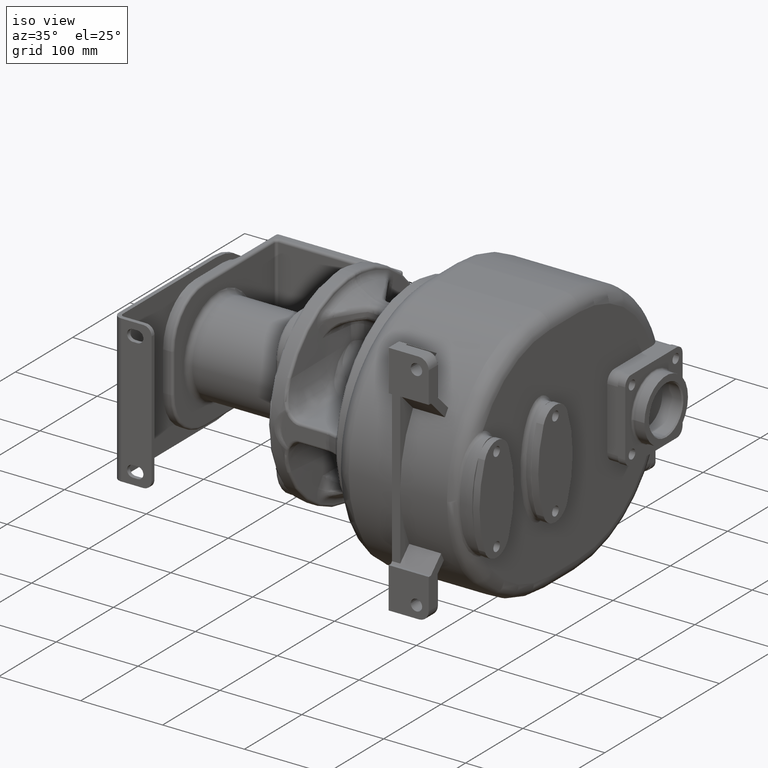
[diagram: clean part render]
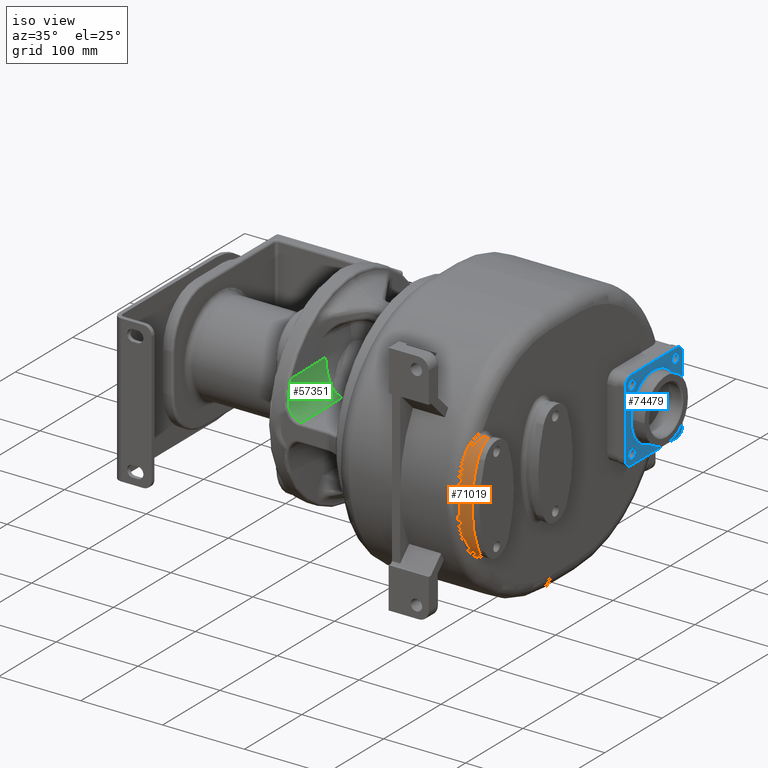
[diagram: same view with three faces highlighted in distinct colors, each labeled with its STEP entity id]
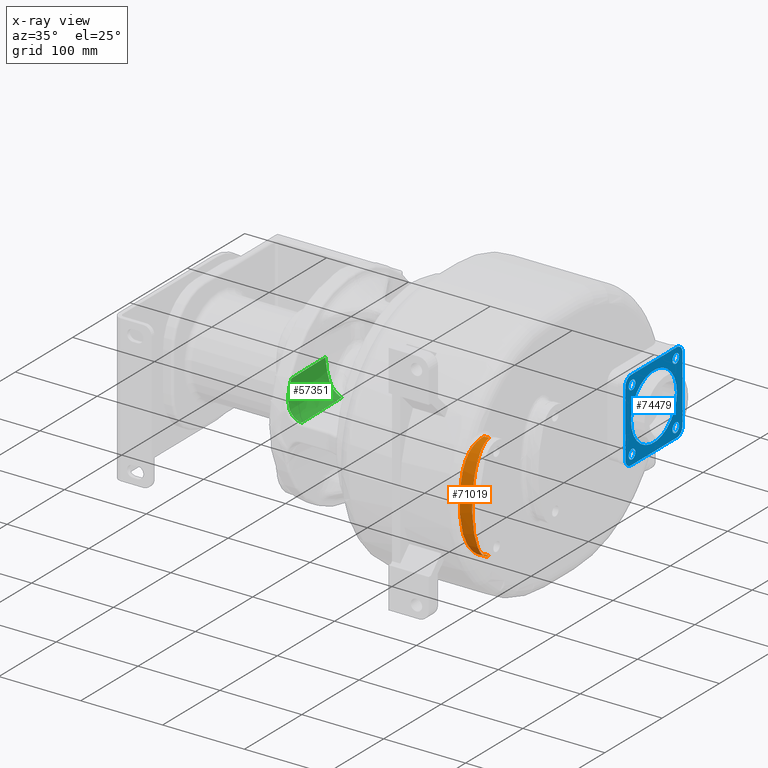
[diagram: x-ray of the same camera — body ghosted, the three highlighted faces saturated]
A machine part, iso view with three faces highlighted in distinct colors.
The next image is the same camera in x-ray (body ghosted, the three faces saturated) — at least one of them is partly hidden behind the body in this view.
Their STEP definitions:

[orange] entity #71019 — the highlighted face is a SurfaceOfExtrusion surface.
#24871=CARTESIAN_POINT('',(5.486613344684E1,4.000000000786E1,5.549998341802E1));
#24918=DIRECTION('',(-9.999999999897E-1,1.281504561312E-9,4.536448817370E-6));
#24919=VECTOR('',#24918,6.133866553126E0);
#24920=CARTESIAN_POINT('',(6.1E1,4.E1,-7.45E1));
#24921=LINE('',#24920,#24919);
#24922=CARTESIAN_POINT('',(5.486613344684E1,4.000000000786E1,5.549998341802E1));
#24923=CARTESIAN_POINT('',(5.484825093388E1,3.985569344335E1,5.549996443372E1));
#24924=CARTESIAN_POINT('',(5.480884060566E1,3.956433177215E1,5.549550282497E1));
#24925=CARTESIAN_POINT('',(5.473871162594E1,3.911941053995E1,5.547441818244E1));
#24926=CARTESIAN_POINT('',(5.465752439886E1,3.866593625672E1,5.543823208400E1));
#24927=CARTESIAN_POINT('',(5.456523616460E1,3.820361295602E1,5.538600143403E1));
#24928=CARTESIAN_POINT('',(5.446184089449E1,3.773215693808E1,5.531676208368E1));
#24929=CARTESIAN_POINT('',(5.434740624540E1,3.725139481984E1,5.522948357155E1));
#24930=CARTESIAN_POINT('',(5.422199869648E1,3.676129962557E1,5.512311304258E1));
#24931=CARTESIAN_POINT('',(5.408555182238E1,3.626159721668E1,5.499648698496E1));
#24932=CARTESIAN_POINT('',(5.393804907426E1,3.575182175002E1,5.484829120700E1));
#24933=CARTESIAN_POINT('',(5.377957392749E1,3.523168460897E1,5.467714769826E1));
#24934=CARTESIAN_POINT('',(5.361035471408E1,3.470106331469E1,5.448163390479E1));
#24935=CARTESIAN_POINT('',(5.343088220082E1,3.416035005221E1,5.426046144211E1));
#24936=CARTESIAN_POINT('',(5.324188321959E1,3.360998468783E1,5.401236033986E1));
#24937=CARTESIAN_POINT('',(5.304385442579E1,3.305047812748E1,5.373609320411E1));
#24938=CARTESIAN_POINT('',(5.283723331679E1,3.248238374646E1,5.343045460943E1));
#24939=CARTESIAN_POINT('',(5.262263617878E1,3.190633218077E1,5.309429699529E1));
#24940=CARTESIAN_POINT('',(5.240081718320E1,3.132302199457E1,5.272654986273E1));
#24941=CARTESIAN_POINT('',(5.217247007524E1,3.073271991812E1,5.232587687622E1));
#24942=CARTESIAN_POINT('',(5.193853259830E1,3.013578598184E1,5.189095638942E1));
#24943=CARTESIAN_POINT('',(5.169961382735E1,2.953258731550E1,5.142043757042E1));
#24944=CARTESIAN_POINT('',(5.145619501395E1,2.892347549420E1,5.091290997581E1));
#24945=CARTESIAN_POINT('',(5.120894060173E1,2.830892716454E1,5.036702061805E1));
#24946=CARTESIAN_POINT('',(5.095860549745E1,2.768943661985E1,4.978140098063E1));
#24947=CARTESIAN_POINT('',(5.070600946152E1,2.706539075783E1,4.915452609891E1));
#24948=CARTESIAN_POINT('',(5.045216633947E1,2.643731681270E1,4.848494897858E1));
#24949=CARTESIAN_POINT('',(5.019757260678E1,2.580547056324E1,4.777085353579E1));
#24950=CARTESIAN_POINT('',(4.994279020548E1,2.517012131280E1,4.701028917248E1));
#24951=CARTESIAN_POINT('',(4.968852675974E1,2.453169439807E1,4.620134173374E1));
#24952=CARTESIAN_POINT('',(4.943565562695E1,2.389085628248E1,4.534227972931E1));
#24953=CARTESIAN_POINT('',(4.918527123451E1,2.324844744090E1,4.443153352465E1));
#24954=CARTESIAN_POINT('',(4.893815523536E1,2.260501877339E1,4.346703228960E1));
#24955=CARTESIAN_POINT('',(4.869485739250E1,2.196084125026E1,4.244605063829E1));
#24956=CARTESIAN_POINT('',(4.845611534777E1,2.131643049541E1,4.136593735569E1));
#24957=CARTESIAN_POINT('',(4.822282633332E1,2.067265795072E1,4.022437810497E1));
#24958=CARTESIAN_POINT('',(4.799607115542E1,2.003066844975E1,3.901937213912E1));
#24959=CARTESIAN_POINT('',(4.777666486576E1,1.939127587106E1,3.774809659952E1));
#24960=CARTESIAN_POINT('',(4.756519666203E1,1.875502817995E1,3.640675498776E1));
#24961=CARTESIAN_POINT('',(4.736239711744E1,1.812283125790E1,3.499172243592E1));
#24962=CARTESIAN_POINT('',(4.716912629979E1,1.749614226814E1,3.350012946297E1));
#24963=CARTESIAN_POINT('',(4.698625452979E1,1.687663727367E1,3.192929132032E1));
#24964=CARTESIAN_POINT('',(4.681438849323E1,1.626561836573E1,3.027507945898E1));
#24965=CARTESIAN_POINT('',(4.665403192071E1,1.566449321557E1,2.853275284834E1));
#24966=CARTESIAN_POINT('',(4.650575801693E1,1.507549615851E1,2.669908495053E1));
#24967=CARTESIAN_POINT('',(4.636998890784E1,1.450142520025E1,2.477211805983E1));
#24968=CARTESIAN_POINT('',(4.624706211313E1,1.394506305966E1,2.274946935360E1));
#24969=CARTESIAN_POINT('',(4.613716304184E1,1.340916594828E1,2.062788437364E1));
#24970=CARTESIAN_POINT('',(4.604031673362E1,1.289744024294E1,1.840708616195E1));
#24971=CARTESIAN_POINT('',(4.595614989119E1,1.241448012422E1,1.609124420980E1));
#24972=CARTESIAN_POINT('',(4.588419963860E1,1.196455649228E1,1.368457519261E1));
#24973=CARTESIAN_POINT('',(4.582410093521E1,1.155187259274E1,1.119260308892E1));
#24974=CARTESIAN_POINT('',(4.577497232948E1,1.118027146067E1,8.620853597836E0));
#24975=CARTESIAN_POINT('',(4.573534980833E1,1.085324894868E1,5.974308322649E0));
#24976=CARTESIAN_POINT('',(4.570418354146E1,1.057440476985E1,3.261228490964E0));
#24977=CARTESIAN_POINT('',(4.568092575245E1,1.034707271315E1,
4.927412083567E-1));
#24978=CARTESIAN_POINT('',(4.566465368206E1,1.017389926116E1,
-2.320466279904E0));
#24979=CARTESIAN_POINT('',(4.565408475671E1,1.005695517075E1,
-5.167993698354E0));
#24980=CARTESIAN_POINT('',(4.564863325141E1,9.997818786263E0,
-8.036977981651E0));
#24981=CARTESIAN_POINT('',(4.564856666392E1,9.997305398762E0,
-1.091222891363E1));
#24982=CARTESIAN_POINT('',(4.565389740324E1,1.005537960136E1,
-1.378058870694E1));
#24983=CARTESIAN_POINT('',(4.566445912875E1,1.017134602892E1,
-1.663002946321E1));
#24984=CARTESIAN_POINT('',(4.568062265773E1,1.034388545445E1,
-1.944896309668E1));
#24985=CARTESIAN_POINT('',(4.570379899096E1,1.057119584643E1,
-2.222728953363E1));
#24986=CARTESIAN_POINT('',(4.573498294086E1,1.085066604933E1,
-2.495207528666E1));
#24987=CARTESIAN_POINT('',(4.577475987261E1,1.117826260894E1,
-2.760606422175E1));
#24988=CARTESIAN_POINT('',(4.582385126712E1,1.154985017073E1,
-3.017953119394E1));
#24989=CARTESIAN_POINT('',(4.588380459757E1,1.196206754628E1,
-3.267035137324E1));
#24990=CARTESIAN_POINT('',(4.595556570324E1,1.241126054415E1,
-3.507487426177E1));
#24991=CARTESIAN_POINT('',(4.603966705070E1,1.289372073630E1,
-3.739013159587E1));
#24992=CARTESIAN_POINT('',(4.613644239297E1,1.340538537714E1,
-3.961225209864E1));
#24993=CARTESIAN_POINT('',(4.624624654020E1,1.394124170212E1,
-4.173498410584E1));
#24994=CARTESIAN_POINT('',(4.636904600017E1,1.449741321276E1,
-4.375810318936E1));
#24995=CARTESIAN_POINT('',(4.650473546007E1,1.507130904074E1,
-4.568555502557E1));
#24996=CARTESIAN_POINT('',(4.665294013052E1,1.566023500438E1,
-4.751997077345E1));
#24997=CARTESIAN_POINT('',(4.681322366626E1,1.626133539436E1,
-4.926308882664E1));
#24998=CARTESIAN_POINT('',(4.698500898149E1,1.687231557830E1,
-5.091797191369E1));
#24999=CARTESIAN_POINT('',(4.716779374395E1,1.749176853908E1,
-5.248938735456E1));
#25000=CARTESIAN_POINT('',(4.736100381048E1,1.811843233578E1,
-5.398157304962E1));
#25001=CARTESIAN_POINT('',(4.756377331590E1,1.875065570845E1,
-5.539726119183E1));
#25002=CARTESIAN_POINT('',(4.777521614974E1,1.938694844722E1,
-5.673924069806E1));
#25003=CARTESIAN_POINT('',(4.799459291125E1,2.002638967052E1,
-5.801110882859E1));
#25004=CARTESIAN_POINT('',(4.822128336022E1,2.066840835367E1,
-5.921662734455E1));
#25005=CARTESIAN_POINT('',(4.845456296681E1,2.131224570490E1,
-6.035872586376E1));
#25006=CARTESIAN_POINT('',(4.869333210054E1,2.195675394033E1,
-6.143939192094E1));
#25007=CARTESIAN_POINT('',(4.893666071038E1,2.260104019189E1,
-6.246090278242E1));
#25008=CARTESIAN_POINT('',(4.918379717709E1,2.324457740807E1,
-6.342589394542E1));
#25009=CARTESIAN_POINT('',(4.943414284148E1,2.388707052891E1,
-6.433706240810E1));
#25010=CARTESIAN_POINT('',(4.968703422522E1,2.452801112447E1,
-6.519654344686E1));
#25011=CARTESIAN_POINT('',(4.994136615583E1,2.516656355880E1,
-6.600590973262E1));
#25012=CARTESIAN_POINT('',(5.019622447308E1,2.580204896323E1,
-6.676687592882E1));
#25013=CARTESIAN_POINT('',(5.045088056649E1,2.643403500407E1,
-6.748134868362E1));
#25014=CARTESIAN_POINT('',(5.070473221908E1,2.706224185717E1,
-6.815126910327E1));
#25015=CARTESIAN_POINT('',(5.095732353987E1,2.768641445586E1,
-6.877845757281E1));
#25016=CARTESIAN_POINT('',(5.120774711653E1,2.830604224003E1,
-6.936437855940E1));
#25017=CARTESIAN_POINT('',(5.145510315253E1,2.892071869035E1,
-6.991053954472E1));
#25018=CARTESIAN_POINT('',(5.169861372102E1,2.952995355495E1,
-7.041831536959E1));
#25019=CARTESIAN_POINT('',(5.193759539964E1,3.013327052928E1,
-7.088906106978E1));
#25020=CARTESIAN_POINT('',(5.217150712023E1,3.073032022852E1,
-7.132419011414E1));
#25021=CARTESIAN_POINT('',(5.239986929332E1,3.132071318008E1,
-7.172503964346E1));
#25022=CARTESIAN_POINT('',(5.262174873078E1,3.190405498434E1,
-7.209291437011E1));
#25023=CARTESIAN_POINT('',(5.283638694170E1,3.248003801148E1,
-7.242913763856E1));
#25024=CARTESIAN_POINT('',(5.304303007927E1,3.304803660471E1,
-7.273483223097E1));
#25025=CARTESIAN_POINT('',(5.324107039858E1,3.360749355338E1,
-7.301118385805E1));
#25026=CARTESIAN_POINT('',(5.343004125330E1,3.415794458838E1,
-7.325942909917E1));
#25027=CARTESIAN_POINT('',(5.360955155809E1,3.469883259106E1,
-7.348076921053E1));
#25028=CARTESIAN_POINT('',(5.377887835709E1,3.522965018131E1,
-7.367644034692E1));
#25029=CARTESIAN_POINT('',(5.393746707359E1,3.574992949087E1,
-7.384770607462E1));
#25030=CARTESIAN_POINT('',(5.408507233955E1,3.625978415090E1,
-7.399599419490E1));
#25031=CARTESIAN_POINT('',(5.422159178162E1,3.675950505010E1,
-7.412269052766E1));
#25032=CARTESIAN_POINT('',(5.434703212906E1,3.724954643572E1,
-7.422911403579E1));
#25033=CARTESIAN_POINT('',(5.446143145620E1,3.773023069667E1,
-7.431644509084E1));
#25034=CARTESIAN_POINT('',(5.456482989907E1,3.820169781278E1,
-7.438575304750E1));
#25035=CARTESIAN_POINT('',(5.465715676010E1,3.866415669189E1,
-7.443806327065E1));
#25036=CARTESIAN_POINT('',(5.473842802029E1,3.911794986615E1,
-7.447432794102E1));
#25037=CARTESIAN_POINT('',(5.480866628705E1,3.956342402366E1,
-7.449548855977E1));
#25038=CARTESIAN_POINT('',(5.484820005079E1,3.985535791879E1,
-7.449994959505E1));
#25039=CARTESIAN_POINT('',(5.486613344694E1,4.000000000786E1,
-7.449997217403E1));
#25041=DIRECTION('',(-9.999999999963E-1,1.281309951296E-9,-2.703349258996E-6));
#25042=VECTOR('',#25041,6.133866553182E0);
#25043=CARTESIAN_POINT('',(6.1E1,4.E1,5.55E1));
#25044=LINE('',#25043,#25042);
#25050=CARTESIAN_POINT('',(6.1E1,4.E1,-7.45E1));
#25096=CARTESIAN_POINT('',(6.1E1,4.E1,5.55E1));
#25098=CARTESIAN_POINT('',(6.1E1,4.E1,5.55E1));
#25099=CARTESIAN_POINT('',(6.1E1,3.911611652352E1,5.55E1));
#25100=CARTESIAN_POINT('',(6.1E1,3.731580987356E1,5.533054573986E1));
#25101=CARTESIAN_POINT('',(6.1E1,3.454669183567E1,5.451550426950E1));
#25102=CARTESIAN_POINT('',(6.1E1,3.174407334957E1,5.309653086462E1));
#25103=CARTESIAN_POINT('',(6.1E1,2.894853609390E1,5.104396596498E1));
#25104=CARTESIAN_POINT('',(6.1E1,2.620473455370E1,4.834504268982E1));
#25105=CARTESIAN_POINT('',(6.1E1,2.355949894121E1,4.500662593933E1));
#25106=CARTESIAN_POINT('',(6.1E1,2.105951407211E1,4.105670292812E1));
#25107=CARTESIAN_POINT('',(6.1E1,1.874878201847E1,3.654430550236E1));
#25108=CARTESIAN_POINT('',(6.1E1,1.666613724042E1,3.153771972519E1));
#25109=CARTESIAN_POINT('',(6.1E1,1.484309525637E1,2.612108489258E1));
#25110=CARTESIAN_POINT('',(6.1E1,1.330228971476E1,2.038974452468E1));
#25111=CARTESIAN_POINT('',(6.1E1,1.205662465524E1,1.444482830054E1));
#25112=CARTESIAN_POINT('',(6.1E1,1.126720200340E1,9.397370552012E0));
#25113=CARTESIAN_POINT('',(6.1E1,1.078180522600E1,5.351619241119E0));
#25114=CARTESIAN_POINT('',(6.1E1,1.048924009925E1,2.324603649750E0));
#25115=CARTESIAN_POINT('',(6.1E1,1.026626806201E1,-6.844433993807E-1));
#25116=CARTESIAN_POINT('',(6.1E1,1.013652702068E1,-3.168763282565E0));
#25117=CARTESIAN_POINT('',(6.1E1,1.006505597521E1,-5.137722021454E0));
#25118=CARTESIAN_POINT('',(6.1E1,1.002725391379E1,-6.604195585030E0));
#25119=CARTESIAN_POINT('',(6.1E1,1.000861162112E1,-7.816699614546E0));
#25120=CARTESIAN_POINT('',(6.1E1,1.000122072680E1,-8.780892543298E0));
#25121=CARTESIAN_POINT('',(6.1E1,9.999389636602E0,-9.5E0));
#25122=CARTESIAN_POINT('',(6.1E1,1.000122072680E1,-1.021910745670E1));
#25123=CARTESIAN_POINT('',(6.1E1,1.000861162112E1,-1.118330038545E1));
#25124=CARTESIAN_POINT('',(6.1E1,1.002725391379E1,-1.239580441497E1));
#25125=CARTESIAN_POINT('',(6.1E1,1.006505597521E1,-1.386227797855E1));
#25126=CARTESIAN_POINT('',(6.1E1,1.013652702068E1,-1.583123671743E1));
#25127=CARTESIAN_POINT('',(6.1E1,1.026626806201E1,-1.831555660062E1));
#25128=CARTESIAN_POINT('',(6.1E1,1.048924009925E1,-2.132460364975E1));
#25129=CARTESIAN_POINT('',(6.1E1,1.078180522600E1,-2.435161924112E1));
#25130=CARTESIAN_POINT('',(6.1E1,1.126720200340E1,-2.839737055201E1));
#25131=CARTESIAN_POINT('',(6.1E1,1.205662465524E1,-3.344482830054E1));
#25132=CARTESIAN_POINT('',(6.1E1,1.330228971476E1,-3.938974452468E1));
#25133=CARTESIAN_POINT('',(6.1E1,1.484309525637E1,-4.512108489258E1));
#25134=CARTESIAN_POINT('',(6.1E1,1.666613724042E1,-5.053771972519E1));
#25135=CARTESIAN_POINT('',(6.1E1,1.874878201847E1,-5.554430550236E1));
#25136=CARTESIAN_POINT('',(6.1E1,2.105951407211E1,-6.005670292812E1));
#25137=CARTESIAN_POINT('',(6.1E1,2.355949894121E1,-6.400662593933E1));
#25138=CARTESIAN_POINT('',(6.1E1,2.620473455370E1,-6.734504268982E1));
#25139=CARTESIAN_POINT('',(6.1E1,2.894853609390E1,-7.004396596498E1));
#25140=CARTESIAN_POINT('',(6.1E1,3.174407334957E1,-7.209653086462E1));
#25141=CARTESIAN_POINT('',(6.1E1,3.454669183567E1,-7.351550426950E1));
#25142=CARTESIAN_POINT('',(6.1E1,3.731580987356E1,-7.433054573986E1));
#25143=CARTESIAN_POINT('',(6.1E1,3.911611652352E1,-7.45E1));
#25144=CARTESIAN_POINT('',(6.1E1,4.E1,-7.45E1));
#28763=VERTEX_POINT('',#25050);
#28764=VERTEX_POINT('',#25096);
#28776=VERTEX_POINT('',#24871);
#28778=VERTEX_POINT('',#25039);
#71003=CARTESIAN_POINT('',(6.1E1,4.E1,-9.5E0));
#71004=DIRECTION('',(1.E0,0.E0,0.E0));
#71005=DIRECTION('',(0.E0,0.E0,-1.E0));
#71006=AXIS2_PLACEMENT_3D('',#71003,#71004,#71005);
#71008=DIRECTION('',(1.E0,0.E0,0.E0));
#71009=VECTOR('',#71008,1.E0);
#71010=SURFACE_OF_LINEAR_EXTRUSION('',#71007,#71009);
#71012=ORIENTED_EDGE('',*,*,#71011,.F.);
#71013=ORIENTED_EDGE('',*,*,#70998,.F.);
#71015=ORIENTED_EDGE('',*,*,#71014,.T.);
#71016=ORIENTED_EDGE('',*,*,#70994,.T.);
#71017=EDGE_LOOP('',(#71012,#71013,#71015,#71016));
#71018=FACE_OUTER_BOUND('',#71017,.F.);
#71019=ADVANCED_FACE('',(#71018),#71010,.T.);
#25040=B_SPLINE_CURVE_WITH_KNOTS('',3,(#24922,#24923,#24924,#24925,#24926,
#24927,#24928,#24929,#24930,#24931,#24932,#24933,#24934,#24935,#24936,#24937,
#24938,#24939,#24940,#24941,#24942,#24943,#24944,#24945,#24946,#24947,#24948,
#24949,#24950,#24951,#24952,#24953,#24954,#24955,#24956,#24957,#24958,#24959,
#24960,#24961,#24962,#24963,#24964,#24965,#24966,#24967,#24968,#24969,#24970,
#24971,#24972,#24973,#24974,#24975,#24976,#24977,#24978,#24979,#24980,#24981,
#24982,#24983,#24984,#24985,#24986,#24987,#24988,#24989,#24990,#24991,#24992,
#24993,#24994,#24995,#24996,#24997,#24998,#24999,#25000,#25001,#25002,#25003,
#25004,#25005,#25006,#25007,#25008,#25009,#25010,#25011,#25012,#25013,#25014,
#25015,#25016,#25017,#25018,#25019,#25020,#25021,#25022,#25023,#25024,#25025,
#25026,#25027,#25028,#25029,#25030,#25031,#25032,#25033,#25034,#25035,#25036,
#25037,#25038,#25039),.UNSPECIFIED.,.F.,.F.,(4,1,1,1,1,1,1,1,1,1,1,1,1,1,1,1,1,
1,1,1,1,1,1,1,1,1,1,1,1,1,1,1,1,1,1,1,1,1,1,1,1,1,1,1,1,1,1,1,1,1,1,1,1,1,1,1,1,
1,1,1,1,1,1,1,1,1,1,1,1,1,1,1,1,1,1,1,1,1,1,1,1,1,1,1,1,1,1,1,1,1,1,1,1,1,1,1,1,
1,1,1,1,1,1,1,1,1,1,1,1,1,1,1,1,1,1,4),(0.E0,8.695652173913E-3,
1.739130434783E-2,2.608695652174E-2,3.478260869565E-2,4.347826086957E-2,
5.217391304348E-2,6.086956521739E-2,6.956521739130E-2,7.826086956522E-2,
8.695652173913E-2,9.565217391304E-2,1.043478260870E-1,1.130434782609E-1,
1.217391304348E-1,1.304347826087E-1,1.391304347826E-1,1.478260869565E-1,
1.565217391304E-1,1.652173913043E-1,1.739130434783E-1,1.826086956522E-1,
1.913043478261E-1,2.E-1,2.086956521739E-1,2.173913043478E-1,2.260869565217E-1,
2.347826086957E-1,2.434782608696E-1,2.521739130435E-1,2.608695652174E-1,
2.695652173913E-1,2.782608695652E-1,2.869565217391E-1,2.956521739130E-1,
3.043478260870E-1,3.130434782609E-1,3.217391304348E-1,3.304347826087E-1,
3.391304347826E-1,3.478260869565E-1,3.565217391304E-1,3.652173913043E-1,
3.739130434783E-1,3.826086956522E-1,3.913043478261E-1,4.E-1,4.086956521739E-1,
4.173913043478E-1,4.260869565217E-1,4.347826086957E-1,4.434782608696E-1,
4.521739130435E-1,4.608695652174E-1,4.695652173913E-1,4.782608695652E-1,
4.869565217391E-1,4.956521739130E-1,5.043478260870E-1,5.130434782609E-1,
5.217391304348E-1,5.304347826087E-1,5.391304347826E-1,5.478260869565E-1,
5.565217391304E-1,5.652173913043E-1,5.739130434783E-1,5.826086956522E-1,
5.913043478261E-1,6.E-1,6.086956521739E-1,6.173913043478E-1,6.260869565217E-1,
6.347826086957E-1,6.434782608696E-1,6.521739130435E-1,6.608695652174E-1,
6.695652173913E-1,6.782608695652E-1,6.869565217391E-1,6.956521739130E-1,
7.043478260870E-1,7.130434782609E-1,7.217391304348E-1,7.304347826087E-1,
7.391304347826E-1,7.478260869565E-1,7.565217391304E-1,7.652173913043E-1,
7.739130434783E-1,7.826086956522E-1,7.913043478261E-1,8.E-1,8.086956521739E-1,
8.173913043478E-1,8.260869565217E-1,8.347826086957E-1,8.434782608696E-1,
8.521739130435E-1,8.608695652174E-1,8.695652173913E-1,8.782608695652E-1,
8.869565217391E-1,8.956521739130E-1,9.043478260870E-1,9.130434782609E-1,
9.217391304348E-1,9.304347826087E-1,9.391304347826E-1,9.478260869565E-1,
9.565217391304E-1,9.652173913043E-1,9.739130434783E-1,9.826086956522E-1,
9.913043478261E-1,1.E0),.UNSPECIFIED.);
#25145=B_SPLINE_CURVE_WITH_KNOTS('',3,(#25098,#25099,#25100,#25101,#25102,
#25103,#25104,#25105,#25106,#25107,#25108,#25109,#25110,#25111,#25112,#25113,
#25114,#25115,#25116,#25117,#25118,#25119,#25120,#25121,#25122,#25123,#25124,
#25125,#25126,#25127,#25128,#25129,#25130,#25131,#25132,#25133,#25134,#25135,
#25136,#25137,#25138,#25139,#25140,#25141,#25142,#25143,#25144),.UNSPECIFIED.,
.F.,.F.,(4,1,1,1,1,1,1,1,1,1,1,1,1,1,1,1,1,1,1,1,1,1,1,1,1,1,1,1,1,1,1,1,1,1,1,
1,1,1,1,1,1,1,1,1,4),(0.E0,3.125E-2,6.25E-2,9.375E-2,1.25E-1,1.5625E-1,1.875E-1,
2.1875E-1,2.5E-1,2.8125E-1,3.125E-1,3.4375E-1,3.75E-1,4.0625E-1,4.21875E-1,
4.375E-1,4.53125E-1,4.6875E-1,4.765625E-1,4.84375E-1,4.921875E-1,4.9609375E-1,
5.E-1,5.0390625E-1,5.078125E-1,5.15625E-1,5.234375E-1,5.3125E-1,5.46875E-1,
5.625E-1,5.78125E-1,5.9375E-1,6.25E-1,6.5625E-1,6.875E-1,7.1875E-1,7.5E-1,
7.8125E-1,8.125E-1,8.4375E-1,8.75E-1,9.0625E-1,9.375E-1,9.6875E-1,1.E0),
.UNSPECIFIED.);
#70994=EDGE_CURVE('',#28763,#28778,#24921,.T.);
#70998=EDGE_CURVE('',#28764,#28776,#25044,.T.);
#71007=ELLIPSE('',#71006,6.5E1,3.E1);
#71011=EDGE_CURVE('',#28776,#28778,#25040,.T.);
#71014=EDGE_CURVE('',#28764,#28763,#25145,.T.);

[blue] entity #74479 — the highlighted planar face has unit normal (1, 0, 0).
#24146=DIRECTION('',(0.E0,1.E0,0.E0));
#24147=VECTOR('',#24146,8.E1);
#24148=CARTESIAN_POINT('',(7.3E1,2.7E2,-5.95E1));
#24149=LINE('',#24148,#24147);
#24184=DIRECTION('',(0.E0,0.E0,-1.E0));
#24185=VECTOR('',#24184,8.E1);
#24186=CARTESIAN_POINT('',(7.3E1,2.6E2,3.05E1));
#24187=LINE('',#24186,#24185);
#24226=DIRECTION('',(0.E0,-1.E0,0.E0));
#24227=VECTOR('',#24226,8.E1);
#24228=CARTESIAN_POINT('',(7.3E1,3.5E2,4.05E1));
#24229=LINE('',#24228,#24227);
#27989=CARTESIAN_POINT('',(7.3E1,3.5E2,3.05E1));
#27990=DIRECTION('',(-1.E0,0.E0,0.E0));
#27991=DIRECTION('',(0.E0,0.E0,1.E0));
#27992=AXIS2_PLACEMENT_3D('',#27989,#27990,#27991);
#28039=DIRECTION('',(0.E0,0.E0,1.E0));
#28040=VECTOR('',#28039,8.E1);
#28041=CARTESIAN_POINT('',(7.3E1,3.6E2,-4.95E1));
#28042=LINE('',#28041,#28040);
#28052=CARTESIAN_POINT('',(7.3E1,3.5E2,-4.95E1));
#28053=DIRECTION('',(-1.E0,0.E0,0.E0));
#28054=DIRECTION('',(0.E0,1.E0,0.E0));
#28055=AXIS2_PLACEMENT_3D('',#28052,#28053,#28054);
#28057=CARTESIAN_POINT('',(7.3E1,3.1E2,-9.5E0));
#28058=DIRECTION('',(1.E0,0.E0,0.E0));
#28059=DIRECTION('',(0.E0,1.E0,0.E0));
#28060=AXIS2_PLACEMENT_3D('',#28057,#28058,#28059);
#28062=CARTESIAN_POINT('',(7.3E1,3.1E2,-9.5E0));
#28063=DIRECTION('',(-1.E0,0.E0,0.E0));
#28064=DIRECTION('',(0.E0,1.E0,0.E0));
#28065=AXIS2_PLACEMENT_3D('',#28062,#28063,#28064);
#28067=CARTESIAN_POINT('',(7.3E1,2.718162338159E2,2.868376618407E1));
#28068=DIRECTION('',(-1.E0,0.E0,0.E0));
#28069=DIRECTION('',(0.E0,0.E0,-1.E0));
#28070=AXIS2_PLACEMENT_3D('',#28067,#28068,#28069);
#28072=CARTESIAN_POINT('',(7.3E1,2.718162338159E2,2.868376618407E1));
#28073=DIRECTION('',(-1.E0,0.E0,0.E0));
#28074=DIRECTION('',(0.E0,0.E0,1.E0));
#28075=AXIS2_PLACEMENT_3D('',#28072,#28073,#28074);
#28077=CARTESIAN_POINT('',(7.3E1,2.718162338159E2,-4.768376618407E1));
#28078=DIRECTION('',(-1.E0,0.E0,0.E0));
#28079=DIRECTION('',(0.E0,1.E0,0.E0));
#28080=AXIS2_PLACEMENT_3D('',#28077,#28078,#28079);
#28082=CARTESIAN_POINT('',(7.3E1,2.718162338159E2,-4.768376618407E1));
#28083=DIRECTION('',(-1.E0,0.E0,0.E0));
#28084=DIRECTION('',(0.E0,-1.E0,0.E0));
#28085=AXIS2_PLACEMENT_3D('',#28082,#28083,#28084);
#28087=CARTESIAN_POINT('',(7.3E1,3.481837661841E2,-4.768376618407E1));
#28088=DIRECTION('',(-1.E0,0.E0,0.E0));
#28089=DIRECTION('',(0.E0,0.E0,1.E0));
#28090=AXIS2_PLACEMENT_3D('',#28087,#28088,#28089);
#28092=CARTESIAN_POINT('',(7.3E1,3.481837661841E2,-4.768376618407E1));
#28093=DIRECTION('',(-1.E0,0.E0,0.E0));
#28094=DIRECTION('',(0.E0,0.E0,-1.E0));
#28095=AXIS2_PLACEMENT_3D('',#28092,#28093,#28094);
#28097=CARTESIAN_POINT('',(7.3E1,3.481837661841E2,2.868376618407E1));
#28098=DIRECTION('',(-1.E0,0.E0,0.E0));
#28099=DIRECTION('',(0.E0,-1.E0,0.E0));
#28100=AXIS2_PLACEMENT_3D('',#28097,#28098,#28099);
#28102=CARTESIAN_POINT('',(7.3E1,3.481837661841E2,2.868376618407E1));
#28103=DIRECTION('',(-1.E0,0.E0,0.E0));
#28104=DIRECTION('',(0.E0,1.E0,0.E0));
#28105=AXIS2_PLACEMENT_3D('',#28102,#28103,#28104);
#28107=CARTESIAN_POINT('',(7.3E1,2.7E2,-4.95E1));
#28108=DIRECTION('',(-1.E0,0.E0,0.E0));
#28109=DIRECTION('',(0.E0,0.E0,-1.E0));
#28110=AXIS2_PLACEMENT_3D('',#28107,#28108,#28109);
#28117=CARTESIAN_POINT('',(7.3E1,2.7E2,3.05E1));
#28118=DIRECTION('',(-1.E0,0.E0,0.E0));
#28119=DIRECTION('',(0.E0,-1.E0,0.E0));
#28120=AXIS2_PLACEMENT_3D('',#28117,#28118,#28119);
#29027=CARTESIAN_POINT('',(7.3E1,3.5E2,-9.5E0));
#29029=VERTEX_POINT('',#29027);
#29031=CARTESIAN_POINT('',(7.3E1,2.7E2,-9.5E0));
#29033=VERTEX_POINT('',#29031);
#29034=CARTESIAN_POINT('',(7.3E1,3.5E2,4.05E1));
#29035=CARTESIAN_POINT('',(7.3E1,2.7E2,4.05E1));
#29036=VERTEX_POINT('',#29034);
#29037=VERTEX_POINT('',#29035);
#29038=CARTESIAN_POINT('',(7.3E1,2.6E2,3.05E1));
#29039=CARTESIAN_POINT('',(7.3E1,2.6E2,-4.95E1));
#29040=VERTEX_POINT('',#29038);
#29041=VERTEX_POINT('',#29039);
#29042=CARTESIAN_POINT('',(7.3E1,2.7E2,-5.95E1));
#29043=CARTESIAN_POINT('',(7.3E1,3.5E2,-5.95E1));
#29044=VERTEX_POINT('',#29042);
#29045=VERTEX_POINT('',#29043);
#29046=CARTESIAN_POINT('',(7.3E1,3.6E2,-4.95E1));
#29047=CARTESIAN_POINT('',(7.3E1,3.6E2,3.05E1));
#29048=VERTEX_POINT('',#29046);
#29049=VERTEX_POINT('',#29047);
#29066=CARTESIAN_POINT('',(7.3E1,2.718162338159E2,2.293376618407E1));
#29067=CARTESIAN_POINT('',(7.3E1,2.718162338159E2,3.443376618407E1));
#29068=VERTEX_POINT('',#29066);
#29069=VERTEX_POINT('',#29067);
#29070=CARTESIAN_POINT('',(7.3E1,2.775662338159E2,-4.768376618407E1));
#29071=CARTESIAN_POINT('',(7.3E1,2.660662338159E2,-4.768376618407E1));
#29072=VERTEX_POINT('',#29070);
#29073=VERTEX_POINT('',#29071);
#29074=CARTESIAN_POINT('',(7.3E1,3.481837661841E2,-4.193376618407E1));
#29075=CARTESIAN_POINT('',(7.3E1,3.481837661841E2,-5.343376618407E1));
#29076=VERTEX_POINT('',#29074);
#29077=VERTEX_POINT('',#29075);
#29078=CARTESIAN_POINT('',(7.3E1,3.424337661841E2,2.868376618407E1));
#29079=CARTESIAN_POINT('',(7.3E1,3.539337661841E2,2.868376618407E1));
#29080=VERTEX_POINT('',#29078);
#29081=VERTEX_POINT('',#29079);
#74432=CARTESIAN_POINT('',(7.3E1,3.1E2,-9.5E0));
#74433=DIRECTION('',(1.E0,0.E0,0.E0));
#74434=DIRECTION('',(0.E0,1.E0,0.E0));
#74435=AXIS2_PLACEMENT_3D('',#74432,#74433,#74434);
#74436=PLANE('',#74435);
#74437=ORIENTED_EDGE('',*,*,#70634,.F.);
#74438=ORIENTED_EDGE('',*,*,#74376,.T.);
#74439=ORIENTED_EDGE('',*,*,#74412,.F.);
#74440=ORIENTED_EDGE('',*,*,#74426,.T.);
#74441=ORIENTED_EDGE('',*,*,#70530,.F.);
#74443=ORIENTED_EDGE('',*,*,#74442,.T.);
#74444=ORIENTED_EDGE('',*,*,#70583,.F.);
#74446=ORIENTED_EDGE('',*,*,#74445,.T.);
#74447=EDGE_LOOP('',(#74437,#74438,#74439,#74440,#74441,#74443,#74444,#74446));
#74448=FACE_OUTER_BOUND('',#74447,.F.);
#74450=ORIENTED_EDGE('',*,*,#74449,.T.);
#74452=ORIENTED_EDGE('',*,*,#74451,.F.);
#74453=EDGE_LOOP('',(#74450,#74452));
#74454=FACE_BOUND('',#74453,.F.);
#74456=ORIENTED_EDGE('',*,*,#74455,.F.);
#74458=ORIENTED_EDGE('',*,*,#74457,.F.);
#74459=EDGE_LOOP('',(#74456,#74458));
#74460=FACE_BOUND('',#74459,.F.);
#74462=ORIENTED_EDGE('',*,*,#74461,.F.);
#74464=ORIENTED_EDGE('',*,*,#74463,.F.);
#74465=EDGE_LOOP('',(#74462,#74464));
#74466=FACE_BOUND('',#74465,.F.);
#74468=ORIENTED_EDGE('',*,*,#74467,.F.);
#74470=ORIENTED_EDGE('',*,*,#74469,.F.);
#74471=EDGE_LOOP('',(#74468,#74470));
#74472=FACE_BOUND('',#74471,.F.);
#74474=ORIENTED_EDGE('',*,*,#74473,.F.);
#74476=ORIENTED_EDGE('',*,*,#74475,.F.);
#74477=EDGE_LOOP('',(#74474,#74476));
#74478=FACE_BOUND('',#74477,.F.);
#74479=ADVANCED_FACE('',(#74448,#74454,#74460,#74466,#74472,#74478),#74436,.T.);
#27993=CIRCLE('',#27992,1.E1);
#28056=CIRCLE('',#28055,1.E1);
#28061=CIRCLE('',#28060,4.E1);
#28066=CIRCLE('',#28065,4.E1);
#28071=CIRCLE('',#28070,5.75E0);
#28076=CIRCLE('',#28075,5.75E0);
#28081=CIRCLE('',#28080,5.75E0);
#28086=CIRCLE('',#28085,5.75E0);
#28091=CIRCLE('',#28090,5.75E0);
#28096=CIRCLE('',#28095,5.75E0);
#28101=CIRCLE('',#28100,5.75E0);
#28106=CIRCLE('',#28105,5.75E0);
#28111=CIRCLE('',#28110,1.E1);
#28121=CIRCLE('',#28120,1.E1);
#70530=EDGE_CURVE('',#29044,#29045,#24149,.T.);
#70583=EDGE_CURVE('',#29040,#29041,#24187,.T.);
#70634=EDGE_CURVE('',#29036,#29037,#24229,.T.);
#74376=EDGE_CURVE('',#29036,#29049,#27993,.T.);
#74412=EDGE_CURVE('',#29048,#29049,#28042,.T.);
#74426=EDGE_CURVE('',#29048,#29045,#28056,.T.);
#74442=EDGE_CURVE('',#29044,#29041,#28111,.T.);
#74445=EDGE_CURVE('',#29040,#29037,#28121,.T.);
#74449=EDGE_CURVE('',#29029,#29033,#28061,.T.);
#74451=EDGE_CURVE('',#29029,#29033,#28066,.T.);
#74455=EDGE_CURVE('',#29068,#29069,#28071,.T.);
#74457=EDGE_CURVE('',#29069,#29068,#28076,.T.);
#74461=EDGE_CURVE('',#29072,#29073,#28081,.T.);
#74463=EDGE_CURVE('',#29073,#29072,#28086,.T.);
#74467=EDGE_CURVE('',#29076,#29077,#28091,.T.);
#74469=EDGE_CURVE('',#29077,#29076,#28096,.T.);
#74473=EDGE_CURVE('',#29080,#29081,#28101,.T.);
#74475=EDGE_CURVE('',#29081,#29080,#28106,.T.);

[green] entity #57351 — the highlighted face is a freeform B-spline surface patch.
#16334=CARTESIAN_POINT('',(-1.873510050844E2,4.909060944038E1,
5.120001611235E1));
#16335=CARTESIAN_POINT('',(-1.873340800191E2,4.945452344648E1,
5.121780749653E1));
#16336=CARTESIAN_POINT('',(-1.872592473443E2,5.106526111179E1,
5.129651640623E1));
#16337=CARTESIAN_POINT('',(-1.871291477346E2,5.387925303082E1,
5.143371973333E1));
#16338=CARTESIAN_POINT('',(-1.869634854273E2,5.749154166738E1,
5.160922238993E1));
#16339=CARTESIAN_POINT('',(-1.868048317067E2,6.098066224741E1,
5.177812856755E1));
#16340=CARTESIAN_POINT('',(-1.866528275102E2,6.435380203019E1,
5.194082006627E1));
#16341=CARTESIAN_POINT('',(-1.865071385725E2,6.761769897451E1,
5.209765551258E1));
#16342=CARTESIAN_POINT('',(-1.863674536749E2,7.077867599346E1,
5.224897227162E1));
#16343=CARTESIAN_POINT('',(-1.862334828921E2,7.384267643442E1,
5.239508832312E1));
#16344=CARTESIAN_POINT('',(-1.861049560658E2,7.681529509123E1,
5.253630393429E1));
#16345=CARTESIAN_POINT('',(-1.859816214379E2,7.970180630557E1,
5.267290318080E1));
#16346=CARTESIAN_POINT('',(-1.858632444369E2,8.250718921244E1,
5.280515532451E1));
#16347=CARTESIAN_POINT('',(-1.857496065784E2,8.523615094631E1,
5.293331609734E1));
#16348=CARTESIAN_POINT('',(-1.856405044709E2,8.789314802533E1,
5.305762886604E1));
#16349=CARTESIAN_POINT('',(-1.855357489164E2,9.048240617564E1,
5.317832582472E1));
#16350=CARTESIAN_POINT('',(-1.854351640877E2,9.300793863380E1,
5.329562873947E1));
#16351=CARTESIAN_POINT('',(-1.853385868504E2,9.547356273481E1,
5.340975095749E1));
#16352=CARTESIAN_POINT('',(-1.852458659747E2,9.788291556222E1,
5.352089452642E1));
#16353=CARTESIAN_POINT('',(-1.851568621106E2,1.002394666075E2,
5.362926464895E1));
#16354=CARTESIAN_POINT('',(-1.850714453293E2,1.025465358654E2,
5.373502129440E1));
#16355=CARTESIAN_POINT('',(-1.850078146562E2,1.043020506034E2,
5.381534165118E1));
#16356=CARTESIAN_POINT('',(-1.849725691666E2,1.052889168104E2,
5.386032936603E1));
#16357=CARTESIAN_POINT('',(-1.849642544698E2,1.055225860593E2,
5.387099222910E1));
#16369=CARTESIAN_POINT('',(-1.678655197369E2,3.984299213127E1,
1.114899490412E1));
#16370=CARTESIAN_POINT('',(-1.680630990703E2,3.984148053177E1,
1.114891579728E1));
#16371=CARTESIAN_POINT('',(-1.684522364030E2,3.983847896545E1,
1.115509507111E1));
#16372=CARTESIAN_POINT('',(-1.690187519924E2,3.983406262827E1,
1.118252661123E1));
#16373=CARTESIAN_POINT('',(-1.695686368063E2,3.982975212825E1,
1.122731088807E1));
#16374=CARTESIAN_POINT('',(-1.701027887426E2,3.982556654218E1,
1.128871774580E1));
#16375=CARTESIAN_POINT('',(-1.706221687911E2,3.982151944798E1,
1.136611565107E1));
#16376=CARTESIAN_POINT('',(-1.711278325615E2,3.981762796385E1,
1.145899000353E1));
#16377=CARTESIAN_POINT('',(-1.716208892890E2,3.981390112021E1,
1.156695509526E1));
#16378=CARTESIAN_POINT('',(-1.721025225785E2,3.981035339287E1,
1.168977594885E1));
#16379=CARTESIAN_POINT('',(-1.725738003953E2,3.980699126974E1,
1.182733443849E1));
#16380=CARTESIAN_POINT('',(-1.730353549262E2,3.980383161324E1,
1.197949807525E1));
#16381=CARTESIAN_POINT('',(-1.734879108425E2,3.980088013048E1,
1.214624501136E1));
#16382=CARTESIAN_POINT('',(-1.739321896238E2,3.979815043650E1,
1.232765426774E1));
#16383=CARTESIAN_POINT('',(-1.743688879431E2,3.979564564008E1,
1.252389884444E1));
#16384=CARTESIAN_POINT('',(-1.747986379538E2,3.979337660632E1,
1.273522912944E1));
#16385=CARTESIAN_POINT('',(-1.752220562180E2,3.979134484858E1,
1.296199377669E1));
#16386=CARTESIAN_POINT('',(-1.756396967890E2,3.978955767710E1,
1.320461795504E1));
#16387=CARTESIAN_POINT('',(-1.760521347163E2,3.978801515388E1,
1.346365146734E1));
#16388=CARTESIAN_POINT('',(-1.764599484449E2,3.978672076765E1,
1.373977563669E1));
#16389=CARTESIAN_POINT('',(-1.768636249518E2,3.978567339014E1,
1.403374606894E1));
#16390=CARTESIAN_POINT('',(-1.772635322811E2,3.978487383441E1,
1.434635802388E1));
#16391=CARTESIAN_POINT('',(-1.776600904185E2,3.978431941555E1,
1.467857669575E1));
#16392=CARTESIAN_POINT('',(-1.780536926031E2,3.978400751378E1,
1.503149868664E1));
#16393=CARTESIAN_POINT('',(-1.784446076686E2,3.978393492941E1,
1.540626972340E1));
#16394=CARTESIAN_POINT('',(-1.788329059947E2,3.978409523087E1,
1.580397511653E1));
#16395=CARTESIAN_POINT('',(-1.792190239256E2,3.978448471693E1,
1.622623176359E1));
#16396=CARTESIAN_POINT('',(-1.796034128257E2,3.978509503028E1,
1.667493756280E1));
#16397=CARTESIAN_POINT('',(-1.799862806403E2,3.978592103423E1,
1.715197697277E1));
#16398=CARTESIAN_POINT('',(-1.803676887788E2,3.978695541140E1,
1.765929509855E1));
#16399=CARTESIAN_POINT('',(-1.807475165337E2,3.978818867884E1,
1.819883174931E1));
#16400=CARTESIAN_POINT('',(-1.811254144081E2,3.978961175201E1,
1.877238808510E1));
#16401=CARTESIAN_POINT('',(-1.813758231129E2,3.979067985128E1,
1.917876388110E1));
#16402=CARTESIAN_POINT('',(-1.815004495376E2,3.979124103934E1,
1.938807008897E1));
#16404=CARTESIAN_POINT('',(-1.815004495376E2,3.979124103934E1,
1.938807008897E1));
#16405=CARTESIAN_POINT('',(-1.815430065311E2,3.979143266318E1,
1.945954353901E1));
#16406=CARTESIAN_POINT('',(-1.816279665397E2,3.978850043428E1,
1.960343056782E1));
#16407=CARTESIAN_POINT('',(-1.817550492773E2,3.977397239501E1,
1.982228478326E1));
#16408=CARTESIAN_POINT('',(-1.818814427805E2,3.974914570583E1,
2.004359598607E1));
#16409=CARTESIAN_POINT('',(-1.820069101777E2,3.971389173713E1,
2.026692263898E1));
#16410=CARTESIAN_POINT('',(-1.820896895814E2,3.968341614999E1,
2.041666617113E1));
#16411=CARTESIAN_POINT('',(-1.821308866975E2,3.966640188050E1,
2.049178131155E1));
#16413=CARTESIAN_POINT('',(-1.821308866975E2,3.966640188050E1,
2.049178131155E1));
#16414=CARTESIAN_POINT('',(-1.821668553460E2,3.965154859646E1,
2.055736371283E1));
#16415=CARTESIAN_POINT('',(-1.822385706489E2,3.962482340247E1,
2.068986780677E1));
#16416=CARTESIAN_POINT('',(-1.823456011988E2,3.959381963149E1,
2.089300071461E1));
#16417=CARTESIAN_POINT('',(-1.824516164217E2,3.957224539456E1,
2.109972767317E1));
#16418=CARTESIAN_POINT('',(-1.825563096622E2,3.956034750711E1,
2.130951536939E1));
#16419=CARTESIAN_POINT('',(-1.826593574633E2,3.955828389300E1,
2.152173737357E1));
#16420=CARTESIAN_POINT('',(-1.827604764278E2,3.956611271914E1,
2.173578302402E1));
#16421=CARTESIAN_POINT('',(-1.828593881836E2,3.958384637381E1,
2.195099541234E1));
#16422=CARTESIAN_POINT('',(-1.829558655699E2,3.961141665503E1,
2.216677033932E1));
#16423=CARTESIAN_POINT('',(-1.830183320320E2,3.963621590612E1,
2.231036965679E1));
#16424=CARTESIAN_POINT('',(-1.830491343445E2,3.965021740038E1,
2.238214940957E1));
#16426=CARTESIAN_POINT('',(-1.830491343445E2,3.965021740038E1,
2.238214940957E1));
#16427=CARTESIAN_POINT('',(-1.831613934571E2,3.970124790573E1,
2.264375230168E1));
#16428=CARTESIAN_POINT('',(-1.833847602173E2,3.980833516147E1,
2.318348018074E1));
#16429=CARTESIAN_POINT('',(-1.837145468386E2,3.998517587772E1,
2.404315752362E1));
#16430=CARTESIAN_POINT('',(-1.840383481845E2,4.018005508261E1,
2.495621009828E1));
#16431=CARTESIAN_POINT('',(-1.843549541917E2,4.039480514577E1,
2.592496662769E1));
#16432=CARTESIAN_POINT('',(-1.846631496019E2,4.063144894208E1,
2.695183728854E1));
#16433=CARTESIAN_POINT('',(-1.849617003875E2,4.089220975637E1,
2.803934693369E1));
#16434=CARTESIAN_POINT('',(-1.852492809001E2,4.117949213414E1,
2.918984729356E1));
#16435=CARTESIAN_POINT('',(-1.855244993006E2,4.149589211269E1,
3.040550167144E1));
#16436=CARTESIAN_POINT('',(-1.857859401615E2,4.184419804059E1,
3.168837230226E1));
#16437=CARTESIAN_POINT('',(-1.860321344529E2,4.222737672596E1,
3.304018034815E1));
#16438=CARTESIAN_POINT('',(-1.862616746132E2,4.264870983950E1,
3.446277602999E1));
#16439=CARTESIAN_POINT('',(-1.864729438834E2,4.311136540590E1,
3.595662521094E1));
#16440=CARTESIAN_POINT('',(-1.866633948659E2,4.361560363684E1,
3.751268905876E1));
#16441=CARTESIAN_POINT('',(-1.868313796600E2,4.416157890142E1,
3.912261987236E1));
#16442=CARTESIAN_POINT('',(-1.869758743319E2,4.474909774039E1,
4.077803266780E1));
#16443=CARTESIAN_POINT('',(-1.870964149901E2,4.537756553129E1,
4.247045998030E1));
#16444=CARTESIAN_POINT('',(-1.871930289176E2,4.604595823425E1,
4.419144516336E1));
#16445=CARTESIAN_POINT('',(-1.872661726401E2,4.675293421646E1,
4.593289454089E1));
#16446=CARTESIAN_POINT('',(-1.873166464380E2,4.749665207015E1,
4.768668327391E1));
#16447=CARTESIAN_POINT('',(-1.873455335717E2,4.827527486671E1,
4.944578288013E1));
#16448=CARTESIAN_POINT('',(-1.873512712656E2,4.881522793537E1,
5.061560019988E1));
#16449=CARTESIAN_POINT('',(-1.873510050844E2,4.909060944038E1,
5.120001611235E1));
#16451=CARTESIAN_POINT('',(-1.650374075161E2,1.055857098234E2,
1.459442474240E1));
#16452=CARTESIAN_POINT('',(-1.652270314475E2,1.056412310601E2,
1.459733551850E1));
#16453=CARTESIAN_POINT('',(-1.656005615187E2,1.057502208225E2,
1.460937026938E1));
#16454=CARTESIAN_POINT('',(-1.661444043682E2,1.059077126051E2,
1.464521520613E1));
#16455=CARTESIAN_POINT('',(-1.666727480026E2,1.060592581968E2,
1.469806381204E1));
#16456=CARTESIAN_POINT('',(-1.671865991105E2,1.062053181386E2,
1.476726140121E1));
#16457=CARTESIAN_POINT('',(-1.676867169225E2,1.063471078468E2,
1.485225938937E1));
#16458=CARTESIAN_POINT('',(-1.681742553161E2,1.064846106476E2,
1.495259373892E1));
#16459=CARTESIAN_POINT('',(-1.686504601646E2,1.066177381964E2,
1.506796363986E1));
#16460=CARTESIAN_POINT('',(-1.691159202164E2,1.067488522661E2,
1.519819336575E1));
#16461=CARTESIAN_POINT('',(-1.695716623192E2,1.068780314063E2,
1.534316306320E1));
#16462=CARTESIAN_POINT('',(-1.698700073663E2,1.069629779297E2,
1.544977891459E1));
#16463=CARTESIAN_POINT('',(-1.700177668054E2,1.070051236979E2,
1.550553262479E1));
#20355=CARTESIAN_POINT('',(-1.678655197369E2,3.984299213127E1,
1.114899490412E1));
#20356=CARTESIAN_POINT('',(-1.678093082220E2,4.103151456730E1,
1.121128272562E1));
#20357=CARTESIAN_POINT('',(-1.676898569232E2,4.356427378972E1,
1.134401901192E1));
#20358=CARTESIAN_POINT('',(-1.675104811076E2,4.739233541475E1,
1.154463922065E1));
#20359=CARTESIAN_POINT('',(-1.673296141155E2,5.128087541534E1,
1.174842896674E1));
#20360=CARTESIAN_POINT('',(-1.671565570330E2,5.503067581064E1,
1.194494767821E1));
#20361=CARTESIAN_POINT('',(-1.669908947330E2,5.864996386372E1,
1.213462652766E1));
#20362=CARTESIAN_POINT('',(-1.668322410105E2,6.214643679391E1,
1.231786890925E1));
#20363=CARTESIAN_POINT('',(-1.666802368144E2,6.552729541052E1,
1.249505220142E1));
#20364=CARTESIAN_POINT('',(-1.665345478766E2,6.879929170134E1,
1.266653026084E1));
#20365=CARTESIAN_POINT('',(-1.663948629790E2,7.196876307987E1,
1.283263521729E1));
#20366=CARTESIAN_POINT('',(-1.662608921961E2,7.504166788837E1,
1.299367933425E1));
#20367=CARTESIAN_POINT('',(-1.661323653698E2,7.802361642434E1,
1.314995663496E1));
#20368=CARTESIAN_POINT('',(-1.660090307420E2,8.091989905593E1,
1.330174437586E1));
#20369=CARTESIAN_POINT('',(-1.658906537409E2,8.373551147752E1,
1.344930437019E1));
#20370=CARTESIAN_POINT('',(-1.657770158823E2,8.647517792425E1,
1.359288420464E1));
#20371=CARTESIAN_POINT('',(-1.656679137752E2,8.914337255868E1,
1.373271836013E1));
#20372=CARTESIAN_POINT('',(-1.655631582194E2,9.174433930435E1,
1.386902925126E1));
#20373=CARTESIAN_POINT('',(-1.654625733950E2,9.428211011512E1,
1.400202818378E1));
#20374=CARTESIAN_POINT('',(-1.653659961421E2,9.676052165831E1,
1.413191622891E1));
#20375=CARTESIAN_POINT('',(-1.652732753227E2,9.918323056347E1,
1.425888502248E1));
#20376=CARTESIAN_POINT('',(-1.651842712551E2,1.015537274297E2,
1.438311749903E1));
#20377=CARTESIAN_POINT('',(-1.651059667572E2,1.036820568453E2,
1.449465851729E1));
#20378=CARTESIAN_POINT('',(-1.650576353039E2,1.050207089056E2,
1.456481429900E1));
#20379=CARTESIAN_POINT('',(-1.650374075153E2,1.055857098230E2,
1.459442474238E1));
#20386=CARTESIAN_POINT('',(-1.650374075153E2,1.055857098230E2,
1.459442474238E1));
#21159=CARTESIAN_POINT('',(-1.700031306653E2,1.070074285691E2,
1.550045817464E1));
#21192=CARTESIAN_POINT('',(-1.700031306653E2,1.070074285691E2,
1.550045817464E1));
#21193=CARTESIAN_POINT('',(-1.701557936548E2,1.070091332768E2,
1.555509884184E1));
#21194=CARTESIAN_POINT('',(-1.704574914887E2,1.070125364569E2,
1.566932469837E1));
#21195=CARTESIAN_POINT('',(-1.708957332726E2,1.070183787638E2,
1.585333938207E1));
#21196=CARTESIAN_POINT('',(-1.713316303142E2,1.070228713484E2,
1.605472382384E1));
#21197=CARTESIAN_POINT('',(-1.717614375169E2,1.070265486373E2,
1.627225157373E1));
#21198=CARTESIAN_POINT('',(-1.721856734666E2,1.070292507046E2,
1.650622225510E1));
#21199=CARTESIAN_POINT('',(-1.726049941970E2,1.070309454004E2,
1.675723662024E1));
#21200=CARTESIAN_POINT('',(-1.730203493394E2,1.070315248419E2,
1.702620974353E1));
#21201=CARTESIAN_POINT('',(-1.734321316247E2,1.070309851012E2,
1.731389515846E1));
#21202=CARTESIAN_POINT('',(-1.738406087742E2,1.070293298262E2,
1.762105803141E1));
#21203=CARTESIAN_POINT('',(-1.742462894454E2,1.070265056887E2,
1.794877086942E1));
#21204=CARTESIAN_POINT('',(-1.746495579040E2,1.070224401298E2,
1.829817269001E1));
#21205=CARTESIAN_POINT('',(-1.750508374822E2,1.070170854574E2,
1.867061256862E1));
#21206=CARTESIAN_POINT('',(-1.754503953303E2,1.070103972057E2,
1.906748067811E1));
#21207=CARTESIAN_POINT('',(-1.758486351606E2,1.070022985352E2,
1.949050141428E1));
#21208=CARTESIAN_POINT('',(-1.762457909389E2,1.069926996882E2,
1.994145860768E1));
#21209=CARTESIAN_POINT('',(-1.766419635022E2,1.069815049758E2,
2.042221461932E1));
#21210=CARTESIAN_POINT('',(-1.770370245488E2,1.069686151352E2,
2.093454660515E1));
#21211=CARTESIAN_POINT('',(-1.774313206691E2,1.069539037716E2,
2.148109807886E1));
#21212=CARTESIAN_POINT('',(-1.778250482764E2,1.069372293578E2,
2.206470969164E1));
#21213=CARTESIAN_POINT('',(-1.782181118766E2,1.069184422923E2,
2.268817886214E1));
#21214=CARTESIAN_POINT('',(-1.786100903326E2,1.068973931950E2,
2.335408376425E1));
#21215=CARTESIAN_POINT('',(-1.790011260191E2,1.068738815648E2,
2.406634648143E1));
#21216=CARTESIAN_POINT('',(-1.793911358884E2,1.068476863420E2,
2.482912720859E1));
#21217=CARTESIAN_POINT('',(-1.797796503283E2,1.068185808127E2,
2.564643307016E1));
#21218=CARTESIAN_POINT('',(-1.801660650050E2,1.067863210809E2,
2.652250763863E1));
#21219=CARTESIAN_POINT('',(-1.805503170446E2,1.067505758575E2,
2.746363039257E1));
#21220=CARTESIAN_POINT('',(-1.809318062701E2,1.067110022154E2,
2.847594045970E1));
#21221=CARTESIAN_POINT('',(-1.813095128993E2,1.066672476434E2,
2.956547736079E1));
#21222=CARTESIAN_POINT('',(-1.816822838166E2,1.066189215734E2,
3.073891637172E1));
#21223=CARTESIAN_POINT('',(-1.820487643652E2,1.065655905823E2,
3.200361431257E1));
#21224=CARTESIAN_POINT('',(-1.824068950946E2,1.065068708921E2,
3.336550556559E1));
#21225=CARTESIAN_POINT('',(-1.827559106879E2,1.064420815323E2,
3.483706780498E1));
#21226=CARTESIAN_POINT('',(-1.830950959151E2,1.063703172177E2,
3.643509268527E1));
#21227=CARTESIAN_POINT('',(-1.834229077991E2,1.062905150526E2,
3.817882115012E1));
#21228=CARTESIAN_POINT('',(-1.837334213422E2,1.062025144471E2,
4.006732277631E1));
#21229=CARTESIAN_POINT('',(-1.840203588660E2,1.061066230151E2,
4.209049552776E1));
#21230=CARTESIAN_POINT('',(-1.842790661159E2,1.060031002911E2,
4.424024928494E1));
#21231=CARTESIAN_POINT('',(-1.845055549905E2,1.058924624586E2,
4.650404583570E1));
#21232=CARTESIAN_POINT('',(-1.846971708371E2,1.057752666864E2,
4.886946392505E1));
#21233=CARTESIAN_POINT('',(-1.848523801284E2,1.056520213397E2,
5.132576938741E1));
#21234=CARTESIAN_POINT('',(-1.849310292185E2,1.055663417425E2,
5.301365992851E1));
#21235=CARTESIAN_POINT('',(-1.849642540938E2,1.055225852636E2,
5.387098407400E1));
#21254=CARTESIAN_POINT('',(-1.849642544698E2,1.055225860593E2,
5.387099222910E1));
#29702=VERTEX_POINT('',#20386);
#29839=CARTESIAN_POINT('',(-1.678655197369E2,3.984299213127E1,
1.114899490412E1));
#29841=VERTEX_POINT('',#29839);
#29850=CARTESIAN_POINT('',(-1.873510050959E2,4.909060941107E1,
5.120001611947E1));
#29851=VERTEX_POINT('',#29850);
#30051=VERTEX_POINT('',#21254);
#30076=VERTEX_POINT('',#21159);
#30077=VERTEX_POINT('',#16402);
#30078=VERTEX_POINT('',#16411);
#30079=VERTEX_POINT('',#16424);
#57076=CARTESIAN_POINT('',(-1.986410268057E2,-5.573641790615E2,-2.014930671E1));
#57077=CARTESIAN_POINT('',(-2.184471708276E2,-5.563309099102E2,
-2.009515536838E1));
#57078=CARTESIAN_POINT('',(-2.186136175008E2,-5.584112941840E2,
1.976708510175E1));
#57079=CARTESIAN_POINT('',(-1.982485300559E2,-5.498612376988E2,
-1.975609421509E1));
#57080=CARTESIAN_POINT('',(-2.180529453990E2,-5.488281276346E2,
-1.970195121087E1));
#57081=CARTESIAN_POINT('',(-2.182211207510E2,-5.509083768186E2,
2.015942603628E1));
#57082=CARTESIAN_POINT('',(-1.974765129974E2,-5.351019496189E2,
-1.898259270302E1));
#57083=CARTESIAN_POINT('',(-2.172774231727E2,-5.340691641689E2,
-1.892846671112E1));
#57084=CARTESIAN_POINT('',(-2.174491036925E2,-5.361491394827E2,
2.093116010736E1));
#57085=CARTESIAN_POINT('',(-1.963367882472E2,-5.133081698096E2,
-1.784042910104E1));
#57086=CARTESIAN_POINT('',(-2.161321852805E2,-5.122759021120E2,
-1.778633024338E1));
#57087=CARTESIAN_POINT('',(-2.163093789423E2,-5.143554468351E2,
2.207054301219E1));
#57088=CARTESIAN_POINT('',(-1.952332700820E2,-4.922018756916E2,
-1.673429509742E1));
#57089=CARTESIAN_POINT('',(-2.150229811988E2,-4.911701495495E2,
-1.668022462148E1));
#57090=CARTESIAN_POINT('',(-2.152058607771E2,-4.932492503724E2,
2.317380837526E1));
#57091=CARTESIAN_POINT('',(-1.941641031784E2,-4.717475774261E2,
-1.566233074853E1));
#57092=CARTESIAN_POINT('',(-2.139479460762E2,-4.707164182916E2,
-1.560828998820E1));
#57093=CARTESIAN_POINT('',(-2.141366938735E2,-4.727950611862E2,
2.424281125466E1));
#57094=CARTESIAN_POINT('',(-1.931283931782E2,-4.519281631814E2,
-1.462363926127E1));
#57095=CARTESIAN_POINT('',(-2.129061808761E2,-4.508975977326E2,
-1.456962961469E1));
#57096=CARTESIAN_POINT('',(-2.131009838733E2,-4.529757683329E2,
2.527844600078E1));
#57097=CARTESIAN_POINT('',(-1.921250550211E2,-4.327228664455E2,
-1.361713230887E1));
#57098=CARTESIAN_POINT('',(-2.118965943941E2,-4.316929227906E2,
-1.356315524913E1));
#57099=CARTESIAN_POINT('',(-2.120976457162E2,-4.337706062819E2,
2.628179775133E1));
#57100=CARTESIAN_POINT('',(-1.911530932370E2,-4.141126297475E2,
-1.264181113160E1));
#57101=CARTESIAN_POINT('',(-2.109181851929E2,-4.130833374698E2,
-1.258786820909E1));
#57102=CARTESIAN_POINT('',(-2.111256839321E2,-4.151605186054E2,
2.725386215958E1));
#57103=CARTESIAN_POINT('',(-1.902115285603E2,-3.960786999195E2,
-1.169669291757E1));
#57104=CARTESIAN_POINT('',(-2.099699677610E2,-3.950500901715E2,
-1.164278576492E1));
#57105=CARTESIAN_POINT('',(-2.101841192554E2,-3.971267532550E2,
2.819561878332E1));
#57106=CARTESIAN_POINT('',(-1.892994160669E2,-3.786029753199E2,
-1.078082899994E1));
#57107=CARTESIAN_POINT('',(-2.090509907714E2,-3.775750809106E2,
-1.072695933661E1));
#57108=CARTESIAN_POINT('',(-2.092720067620E2,-3.796512097874E2,
2.910801294845E1));
#57109=CARTESIAN_POINT('',(-1.884158393995E2,-3.616678952054E2,
-9.893299059160E0));
#57110=CARTESIAN_POINT('',(-2.081603312687E2,-3.606407506958E2,
-9.839468696406E0));
#57111=CARTESIAN_POINT('',(-2.083884300946E2,-3.627163287425E2,
2.999196152702E1));
#57112=CARTESIAN_POINT('',(-1.875599112040E2,-3.452564480573E2,
-9.033211559306E0));
#57113=CARTESIAN_POINT('',(-2.072970951116E2,-3.442300898607E2,
-8.979422405471E0));
#57114=CARTESIAN_POINT('',(-2.075325018991E2,-3.463050999753E2,
3.084835250324E1));
#57115=CARTESIAN_POINT('',(-1.867307717108E2,-3.293521443479E2,
-8.199702320854E0));
#57116=CARTESIAN_POINT('',(-2.064604155453E2,-3.283266108367E2,
-8.145956386951E0));
#57117=CARTESIAN_POINT('',(-2.067033624059E2,-3.304010354286E2,
3.167804639594E1));
#57118=CARTESIAN_POINT('',(-1.859275879361E2,-3.139390011817E2,
-7.391933715741E0));
#57119=CARTESIAN_POINT('',(-2.056494523992E2,-3.129143328005E2,
-7.338233121382E0));
#57120=CARTESIAN_POINT('',(-2.059001786312E2,-3.149881537808E2,
3.248187706075E1));
#57121=CARTESIAN_POINT('',(-1.851495529843E2,-2.990015288623E2,
-6.609093963379E0));
#57122=CARTESIAN_POINT('',(-2.048633913857E2,-2.979777682477E2,
-6.555440943052E0));
#57123=CARTESIAN_POINT('',(-2.051221436794E2,-3.000509670197E2,
3.326065239182E1));
#57124=CARTESIAN_POINT('',(-1.843958854531E2,-2.845247194271E2,
-5.850396529776E0));
#57125=CARTESIAN_POINT('',(-2.041014435037E2,-2.835019115343E2,
-5.796793439481E0));
#57126=CARTESIAN_POINT('',(-2.043684761482E2,-2.855744689846E2,
3.401515492123E1));
#57127=CARTESIAN_POINT('',(-1.836658286083E2,-2.704940307661E2,
-5.115079295241E0));
#57128=CARTESIAN_POINT('',(-2.033628442104E2,-2.694722230029E2,
-5.061528619520E0));
#57129=CARTESIAN_POINT('',(-2.036384193034E2,-2.715441194934E2,
3.474614264867E1));
#57130=CARTESIAN_POINT('',(-1.829586494426E2,-2.568953684753E2,
-4.402403603359E0));
#57131=CARTESIAN_POINT('',(-2.026468524735E2,-2.558746108447E2,
-4.348907962755E0));
#57132=CARTESIAN_POINT('',(-2.029312401377E2,-2.579458262043E2,
3.545434998895E1));
#57133=CARTESIAN_POINT('',(-1.822736378069E2,-2.437150691018E2,
-3.711653382909E0));
#57134=CARTESIAN_POINT('',(-2.019527498985E2,-2.426954143529E2,
-3.658215541885E0));
#57135=CARTESIAN_POINT('',(-2.022462285020E2,-2.447659278700E2,
3.614048864658E1));
#57136=CARTESIAN_POINT('',(-1.816101057523E2,-2.309398874034E2,
-3.042134480158E0));
#57137=CARTESIAN_POINT('',(-2.012798400665E2,-2.299213911914E2,
-2.988757355482E0));
#57138=CARTESIAN_POINT('',(-2.015826964473E2,-2.319911816073E2,
3.680524828091E1));
#57139=CARTESIAN_POINT('',(-1.809673869452E2,-2.185569850145E2,
-2.393174064881E0));
#57140=CARTESIAN_POINT('',(-2.006274479481E2,-2.175397060705E2,
-2.339860734511E0));
#57141=CARTESIAN_POINT('',(-2.009399776403E2,-2.196087515733E2,
3.744929709833E1));
#57142=CARTESIAN_POINT('',(-1.803448360651E2,-2.065539187607E2,
-1.764120017930E0));
#57143=CARTESIAN_POINT('',(-1.999949192990E2,-2.055379190705E2,
-1.710873730414E0));
#57144=CARTESIAN_POINT('',(-2.003174267602E2,-2.076061972906E2,
3.807328246282E1));
#57145=CARTESIAN_POINT('',(-1.797418281154E2,-1.949186272901E2,
-1.154340230647E0));
#57146=CARTESIAN_POINT('',(-1.993816199687E2,-1.939039722849E2,
-1.101164415087E0));
#57147=CARTESIAN_POINT('',(-1.997144188104E2,-1.959714602914E2,
3.867783159410E1));
#57148=CARTESIAN_POINT('',(-1.791577577267E2,-1.836394175353E2,
-5.632218953290E-1));
#57149=CARTESIAN_POINT('',(-1.987869352005E2,-1.826261762932E2,
-5.101201719501E-1));
#57150=CARTESIAN_POINT('',(-1.991303484218E2,-1.846928505907E2,
3.926355227452E1));
#57151=CARTESIAN_POINT('',(-1.785920385231E2,-1.727049523531E2,
9.829142518708E-3));
#57152=CARTESIAN_POINT('',(-1.982102689949E2,-1.716931978125E2,
6.285295116943E-2));
#57153=CARTESIAN_POINT('',(-1.985646292182E2,-1.737590343411E2,
3.983103349445E1));
#57154=CARTESIAN_POINT('',(-1.780441025857E2,-1.621042400436E2,
5.653889334766E-1));
#57155=CARTESIAN_POINT('',(-1.976510435741E2,-1.610940492301E2,
6.183307906672E-1));
#57156=CARTESIAN_POINT('',(-1.980166932808E2,-1.631590233650E2,
4.038084600015E1));
#57157=CARTESIAN_POINT('',(-1.775133999441E2,-1.518266243607E2,
1.104015947743E0));
#57158=CARTESIAN_POINT('',(-1.971086988730E2,-1.508180786261E2,
1.156871589998E0));
#57159=CARTESIAN_POINT('',(-1.974859906392E2,-1.528821651808E2,
4.091354281646E1));
#57160=CARTESIAN_POINT('',(-1.769993980425E2,-1.418617740469E2,
1.626251623578E0));
#57161=CARTESIAN_POINT('',(-1.965826920077E2,-1.408549593235E2,
1.679016547382E0));
#57162=CARTESIAN_POINT('',(-1.969719887376E2,-1.429181325542E2,
4.142965979436E1));
#57163=CARTESIAN_POINT('',(-1.765015811640E2,-1.321996714971E2,
2.132620961417E0));
#57164=CARTESIAN_POINT('',(-1.960724966991E2,-1.311946785662E2,
2.185290409120E0));
#57165=CARTESIAN_POINT('',(-1.964741718591E2,-1.332569121790E2,
4.192971620388E1));
#57166=CARTESIAN_POINT('',(-1.760194498716E2,-1.228306017398E2,
2.623633101344E0));
#57167=CARTESIAN_POINT('',(-1.955776027160E2,-1.218275265169E2,
2.676202046232E0));
#57168=CARTESIAN_POINT('',(-1.959920405667E2,-1.238887936774E2,
4.241421531061E1));
#57169=CARTESIAN_POINT('',(-1.755525204999E2,-1.137451423486E2,
3.099781851805E0));
#57170=CARTESIAN_POINT('',(-1.950975153690E2,-1.127440861850E2,
3.152244982276E0));
#57171=CARTESIAN_POINT('',(-1.955251111950E2,-1.148043595307E2,
4.288364490401E1));
#57172=CARTESIAN_POINT('',(-1.751003247048E2,-1.049341544522E2,
3.561546160745E0));
#57173=CARTESIAN_POINT('',(-1.946317550654E2,-1.039352244548E2,
3.613897863565E0));
#57174=CARTESIAN_POINT('',(-1.950729153999E2,-1.059944761115E2,
4.333847776938E1));
#57175=CARTESIAN_POINT('',(-1.746624090218E2,-9.638877388288E1,
4.009390579511E0));
#57176=CARTESIAN_POINT('',(-1.941798568735E2,-9.539208325258E1,
4.061624922077E0));
#57177=CARTESIAN_POINT('',(-1.946349997169E2,-9.745028485357E1,
4.377917215313E1));
#57178=CARTESIAN_POINT('',(-1.742383344158E2,-8.810040211984E1,
4.443765737484E0));
#57179=CARTESIAN_POINT('',(-1.937413700803E2,-8.710607050937E1,
4.495876449059E0));
#57180=CARTESIAN_POINT('',(-1.942109251109E2,-8.916319321974E1,
4.420617223923E1));
#57181=CARTESIAN_POINT('',(-1.738276758304E2,-8.006069717350E1,
4.865108819812E0));
#57182=CARTESIAN_POINT('',(-1.933158577489E2,-7.906885106694E1,
4.917089271647E0));
#57183=CARTESIAN_POINT('',(-1.938002665255E2,-8.112486561191E1,
4.461990862909E1));
#57184=CARTESIAN_POINT('',(-1.734300217715E2,-7.226156509933E1,
5.273844012154E0));
#57185=CARTESIAN_POINT('',(-1.929028963128E2,-7.127233821347E1,
5.325687196450E0));
#57186=CARTESIAN_POINT('',(-1.934026124666E2,-7.332721491209E1,
4.502079878975E1));
#57187=CARTESIAN_POINT('',(-1.730449739226E2,-6.469515208065E1,
5.670382915602E0));
#57188=CARTESIAN_POINT('',(-1.925020752056E2,-6.370868578968E1,
5.722081423249E0));
#57189=CARTESIAN_POINT('',(-1.930175646177E2,-6.576239459425E1,
4.540924747348E1));
#57190=CARTESIAN_POINT('',(-1.726721467704E2,-5.735383666292E1,
6.055124953662E0));
#57191=CARTESIAN_POINT('',(-1.921129965025E2,-5.637028044770E1,
6.106670950701E0));
#57192=CARTESIAN_POINT('',(-1.926447374655E2,-5.842279098960E1,
4.578564713069E1));
#57193=CARTESIAN_POINT('',(-1.723111672222E2,-5.023022176548E1,
6.428457790904E0));
#57194=CARTESIAN_POINT('',(-1.917352745557E2,-4.924973368872E1,
6.479842993620E0));
#57195=CARTESIAN_POINT('',(-1.922837579173E2,-5.130101533129E1,
4.615037833541E1));
#57196=CARTESIAN_POINT('',(-1.719616742315E2,-4.331712679263E1,
6.790757746404E0));
#57197=CARTESIAN_POINT('',(-1.913685356418E2,-4.233987400157E1,
6.841973394982E0));
#57198=CARTESIAN_POINT('',(-1.919342649266E2,-4.438989590074E1,
4.650381020677E1));
#57199=CARTESIAN_POINT('',(-1.716233184433E2,-3.660758006559E1,
7.142390190364E0));
#57200=CARTESIAN_POINT('',(-1.910124176311E2,-3.563373932351E1,
7.193427021032E0));
#57201=CARTESIAN_POINT('',(-1.915959091384E2,-3.768247049705E1,
4.684630081537E1));
#57202=CARTESIAN_POINT('',(-1.712957618617E2,-3.009481159767E1,
7.483709922752E0));
#57203=CARTESIAN_POINT('',(-1.906665696838E2,-2.912456984581E1,
7.534558138335E0));
#57204=CARTESIAN_POINT('',(-1.912683525568E2,-3.117197925204E1,
4.717819757373E1));
#57205=CARTESIAN_POINT('',(-1.709786775308E2,-2.377224607709E1,
7.815061541057E0));
#57206=CARTESIAN_POINT('',(-1.903306519651E2,-2.280580102836E1,
7.865710779860E0));
#57207=CARTESIAN_POINT('',(-1.909512682259E2,-2.485185765538E1,
4.749983761799E1));
#57208=CARTESIAN_POINT('',(-1.706717492239E2,-1.763349589020E1,
8.136779805925E0));
#57209=CARTESIAN_POINT('',(-1.900043353707E2,-1.667105665648E1,
8.187219108860E0));
#57210=CARTESIAN_POINT('',(-1.906443399190E2,-1.871572962296E1,
4.781154818964E1));
#57211=CARTESIAN_POINT('',(-1.703746711536E2,-1.167235449038E1,
8.449189988682E0));
#57212=CARTESIAN_POINT('',(-1.896873012817E2,-1.071414224487E1,
8.499407764551E0));
#57213=CARTESIAN_POINT('',(-1.903472618487E2,-1.275740091361E1,
4.811364700217E1));
#57214=CARTESIAN_POINT('',(-1.700871476082E2,-5.882788149978E0,
8.752608303595E0));
#57215=CARTESIAN_POINT('',(-1.893792412445E2,-4.929036827659E0,
8.802592292386E0));
#57216=CARTESIAN_POINT('',(-1.900597383033E2,-6.970850932654E0,
4.840644269217E1));
#57217=CARTESIAN_POINT('',(-1.698088929130E2,-2.589341196998E-1,
9.047342004333E0));
#57218=CARTESIAN_POINT('',(-1.890798570033E2,6.901088469021E-1,
9.097079238657E0));
#57219=CARTESIAN_POINT('',(-1.897814836081E2,-1.350230943137E0,
4.869023494917E1));
#57220=CARTESIAN_POINT('',(-1.695396302786E2,5.204923818707E0,
9.333690665203E0));
#57221=CARTESIAN_POINT('',(-1.887888593445E2,6.148996708067E0,
9.383167428816E0));
#57222=CARTESIAN_POINT('',(-1.895122209737E2,4.110160313766E0,
4.896531579042E1));
#57223=CARTESIAN_POINT('',(-1.692790950914E2,1.051428990697E1,
9.611942751290E0));
#57224=CARTESIAN_POINT('',(-1.885059717424E2,1.145311593968E1,
9.661144538797E0));
#57225=CARTESIAN_POINT('',(-1.892516857865E2,9.415811157754E0,
4.923196631130E1));
#57226=CARTESIAN_POINT('',(-1.690270218432E2,1.567472406508E1,
9.882389645653E0));
#57227=CARTESIAN_POINT('',(-1.882309162779E2,1.660801033496E1,
9.931301106492E0));
#57228=CARTESIAN_POINT('',(-1.889996125382E2,1.457226437894E1,
4.949047018346E1));
#57229=CARTESIAN_POINT('',(-1.687831949584E2,2.069080302236E1,
1.014527120451E1));
#57230=CARTESIAN_POINT('',(-1.879634692067E2,2.161824050340E1,
1.019387614332E1));
#57231=CARTESIAN_POINT('',(-1.887557856535E2,1.958407910758E1,
4.974106166919E1));
#57232=CARTESIAN_POINT('',(-1.685477833103E2,2.555918133392E1,
1.040041210053E1));
#57233=CARTESIAN_POINT('',(-1.877038313130E2,2.648045406767E1,
1.044869395862E1));
#57234=CARTESIAN_POINT('',(-1.885203740054E2,2.444789863362E1,
4.998358064514E1));
#57235=CARTESIAN_POINT('',(-1.683213866384E2,3.026738323863E1,
1.064715850677E1));
#57236=CARTESIAN_POINT('',(-1.874526929521E2,3.118218388621E1,
1.069510117720E1));
#57237=CARTESIAN_POINT('',(-1.882939773335E2,2.915124758026E1,
5.021741915334E1));
#57238=CARTESIAN_POINT('',(-1.681045858044E2,3.480288713291E1,
1.088485419380E1));
#57239=CARTESIAN_POINT('',(-1.872107492796E2,3.571092552107E1,
1.093244246923E1));
#57240=CARTESIAN_POINT('',(-1.880771764995E2,3.368161193154E1,
5.044197943804E1));
#57241=CARTESIAN_POINT('',(-1.678974651095E2,3.916317966614E1,
1.111336744249E1));
#57242=CARTESIAN_POINT('',(-1.869781628003E2,4.006417555606E1,
1.116058663623E1));
#57243=CARTESIAN_POINT('',(-1.878700558046E2,3.803648126553E1,
5.065716966053E1));
#57244=CARTESIAN_POINT('',(-1.676996053469E2,4.335623255265E1,
1.133311603269E1));
#57245=CARTESIAN_POINT('',(-1.867545372995E2,4.424990138771E1,
1.137995123175E1));
#57246=CARTESIAN_POINT('',(-1.876721960420E2,4.222381956004E1,
5.086341871277E1));
#57247=CARTESIAN_POINT('',(-1.675104811076E2,4.739233541475E1,
1.154463922065E1));
#57248=CARTESIAN_POINT('',(-1.865393535838E2,4.827838340022E1,
1.159107502791E1));
#57249=CARTESIAN_POINT('',(-1.874830718027E2,4.625390476274E1,
5.106126817776E1));
#57250=CARTESIAN_POINT('',(-1.673296141155E2,5.128087541534E1,
1.174842896674E1));
#57251=CARTESIAN_POINT('',(-1.863321414153E2,5.215899963439E1,
1.179444950699E1));
#57252=CARTESIAN_POINT('',(-1.873022048106E2,5.013611226357E1,
5.125121327850E1));
#57253=CARTESIAN_POINT('',(-1.671565570330E2,5.503067581064E1,
1.194494767821E1));
#57254=CARTESIAN_POINT('',(-1.861324616121E2,5.590056382782E1,
1.199053657741E1));
#57255=CARTESIAN_POINT('',(-1.871291477281E2,5.387925303752E1,
5.143371972714E1));
#57256=CARTESIAN_POINT('',(-1.669908947330E2,5.864996386372E1,
1.213462652766E1));
#57257=CARTESIAN_POINT('',(-1.859399079174E2,5.951129347773E1,
1.217976689996E1));
#57258=CARTESIAN_POINT('',(-1.869634854281E2,5.749154166750E1,
5.160922235604E1));
#57259=CARTESIAN_POINT('',(-1.668322410105E2,6.214643679391E1,
1.231786890925E1));
#57260=CARTESIAN_POINT('',(-1.857541036481E2,6.299887574528E1,
1.236254334167E1));
#57261=CARTESIAN_POINT('',(-1.868048317056E2,6.098066224919E1,
5.177812854071E1));
#57262=CARTESIAN_POINT('',(-1.666802368144E2,6.552729541052E1,
1.249505220142E1));
#57263=CARTESIAN_POINT('',(-1.855747000690E2,6.637050110737E1,
1.253924273947E1));
#57264=CARTESIAN_POINT('',(-1.866528275095E2,6.435380203155E1,
5.194082003765E1));
#57265=CARTESIAN_POINT('',(-1.665345478766E2,6.879929170134E1,
1.266653026084E1));
#57266=CARTESIAN_POINT('',(-1.854013740350E2,6.963291091935E1,
1.271021839282E1));
#57267=CARTESIAN_POINT('',(-1.865071385717E2,6.761769897598E1,
5.209765548442E1));
#57268=CARTESIAN_POINT('',(-1.663948629790E2,7.196876307987E1,
1.283263521729E1));
#57269=CARTESIAN_POINT('',(-1.852338263498E2,7.279243166150E1,
1.287580185852E1));
#57270=CARTESIAN_POINT('',(-1.863674536741E2,7.077867599490E1,
5.224897224336E1));
#57271=CARTESIAN_POINT('',(-1.662608921961E2,7.504166788837E1,
1.299367933425E1));
#57272=CARTESIAN_POINT('',(-1.850717800714E2,7.585501042894E1,
1.303630481060E1));
#57273=CARTESIAN_POINT('',(-1.862334828912E2,7.384267643587E1,
5.239508829488E1));
#57274=CARTESIAN_POINT('',(-1.661323653698E2,7.802361642434E1,
1.314995663496E1));
#57275=CARTESIAN_POINT('',(-1.849149790673E2,7.882624594922E1,
1.319202066595E1));
#57276=CARTESIAN_POINT('',(-1.861049560649E2,7.681529509267E1,
5.253630390611E1));
#57277=CARTESIAN_POINT('',(-1.660090307420E2,8.091989905593E1,
1.330174437586E1));
#57278=CARTESIAN_POINT('',(-1.847631867383E2,8.171141669058E1,
1.334322605735E1));
#57279=CARTESIAN_POINT('',(-1.859816214371E2,7.970180630702E1,
5.267290315245E1));
#57280=CARTESIAN_POINT('',(-1.658906537409E2,8.373551147752E1,
1.344930437019E1));
#57281=CARTESIAN_POINT('',(-1.846161849097E2,8.451550611371E1,
1.349018215693E1));
#57282=CARTESIAN_POINT('',(-1.858632444360E2,8.250718921383E1,
5.280515529683E1));
#57283=CARTESIAN_POINT('',(-1.657770158823E2,8.647517792425E1,
1.359288420464E1));
#57284=CARTESIAN_POINT('',(-1.844737728472E2,8.724322588468E1,
1.363313589263E1));
#57285=CARTESIAN_POINT('',(-1.857496065774E2,8.523615094793E1,
5.293331606731E1));
#57286=CARTESIAN_POINT('',(-1.656679137752E2,8.914337255868E1,
1.373271836013E1));
#57287=CARTESIAN_POINT('',(-1.843357663875E2,8.989903726264E1,
1.377232106915E1));
#57288=CARTESIAN_POINT('',(-1.856405044703E2,8.789314802610E1,
5.305762884448E1));
#57289=CARTESIAN_POINT('',(-1.655631582194E2,9.174433930435E1,
1.386902925126E1));
#57290=CARTESIAN_POINT('',(-1.842019971701E2,9.248717093697E1,
1.390795940751E1));
#57291=CARTESIAN_POINT('',(-1.855357489145E2,9.048240617948E1,
5.317832577281E1));
#57292=CARTESIAN_POINT('',(-1.654625733950E2,9.428211011512E1,
1.400202818378E1));
#57293=CARTESIAN_POINT('',(-1.840723119733E2,9.501164530433E1,
1.404026150296E1));
#57294=CARTESIAN_POINT('',(-1.854351640901E2,9.300793862659E1,
5.329562879673E1));
#57295=CARTESIAN_POINT('',(-1.653659961421E2,9.676052165831E1,
1.413191622891E1));
#57296=CARTESIAN_POINT('',(-1.839465721546E2,9.747628316526E1,
1.416942769998E1));
#57297=CARTESIAN_POINT('',(-1.853385868372E2,9.547356276739E1,
5.340975062164E1));
#57298=CARTESIAN_POINT('',(-1.652732753227E2,9.918323056345E1,
1.425888502248E1));
#57299=CARTESIAN_POINT('',(-1.838246531888E2,9.988472699350E1,
1.429564889255E1));
#57300=CARTESIAN_POINT('',(-1.852458660178E2,9.788291545134E1,
5.352089560833E1));
#57301=CARTESIAN_POINT('',(-1.651842712552E2,1.015537274298E2,
1.438311749904E1));
#57302=CARTESIAN_POINT('',(-1.837064442938E2,1.022404529723E2,
1.441910725970E1));
#57303=CARTESIAN_POINT('',(-1.851568619503E2,1.002394670147E2,
5.362926061084E1));
#57304=CARTESIAN_POINT('',(-1.650988552090E2,1.038753499040E2,
1.450478857725E1));
#57305=CARTESIAN_POINT('',(-1.835918481274E2,1.045467841092E2,
1.453997695287E1));
#57306=CARTESIAN_POINT('',(-1.850714459041E2,1.025465343989E2,
5.373503577273E1));
#57307=CARTESIAN_POINT('',(-1.650169089790E2,1.061512941777E2,
1.462406576240E1));
#57308=CARTESIAN_POINT('',(-1.834807805863E2,1.068069017851E2,
1.465842470119E1));
#57309=CARTESIAN_POINT('',(-1.849894996741E2,1.048072927062E2,
5.383840525240E1));
#57310=CARTESIAN_POINT('',(-1.649383244771E2,1.083846266314E2,
1.474110975670E1));
#57311=CARTESIAN_POINT('',(-1.833731706230E2,1.090238574564E2,
1.477461042469E1));
#57312=CARTESIAN_POINT('',(-1.849109151721E2,1.070247869126E2,
5.393954795790E1));
#57313=CARTESIAN_POINT('',(-1.648630035126E2,1.105782906029E2,
1.485607481394E1));
#57314=CARTESIAN_POINT('',(-1.832689603080E2,1.112005795241E2,
1.488868759437E1));
#57315=CARTESIAN_POINT('',(-1.848355942077E2,1.092019387518E2,
5.403863805800E1));
#57316=CARTESIAN_POINT('',(-1.647908572639E2,1.127351226943E2,
1.496910959413E1));
#57317=CARTESIAN_POINT('',(-1.831681044859E2,1.133398896887E2,
1.500080408930E1));
#57318=CARTESIAN_POINT('',(-1.847634479590E2,1.113415630927E2,
5.413584594070E1));
#57319=CARTESIAN_POINT('',(-1.647218067571E2,1.148578387781E2,
1.508035643014E1));
#57320=CARTESIAN_POINT('',(-1.830705717351E2,1.154444892350E2,
1.511110147780E1));
#57321=CARTESIAN_POINT('',(-1.846943974522E2,1.134463542501E2,
5.423133774938E1));
#57322=CARTESIAN_POINT('',(-1.646557808371E2,1.169490996540E2,
1.518995476854E1));
#57323=CARTESIAN_POINT('',(-1.829763421144E2,1.175170244184E2,
1.521971844425E1));
#57324=CARTESIAN_POINT('',(-1.846283715322E2,1.155189514095E2,
5.432527870228E1));
#57325=CARTESIAN_POINT('',(-1.645927211536E2,1.190113441889E2,
1.529803242495E1));
#57326=CARTESIAN_POINT('',(-1.828854137061E2,1.195599210447E2,
1.532678211974E1));
#57327=CARTESIAN_POINT('',(-1.845653118487E2,1.175617732618E2,
5.441782522930E1));
#57328=CARTESIAN_POINT('',(-1.645523709887E2,1.203770370709E2,
1.536960535609E1));
#57329=CARTESIAN_POINT('',(-1.828266337663E2,1.209122081227E2,
1.539765248245E1));
#57330=CARTESIAN_POINT('',(-1.845249616837E2,1.189139136416E2,
5.447908481647E1));
#57331=CARTESIAN_POINT('',(-1.645326928512E2,1.210554270973E2,
1.540515827086E1));
#57332=CARTESIAN_POINT('',(-1.827978225217E2,1.215837886046E2,
1.543284852412E1));
#57333=CARTESIAN_POINT('',(-1.845052835463E2,1.195853952262E2,
5.450951541458E1));
#57334=(BOUNDED_SURFACE()B_SPLINE_SURFACE(3,2,((#57076,#57077,#57078),(#57079,
#57080,#57081),(#57082,#57083,#57084),(#57085,#57086,#57087),(#57088,#57089,
#57090),(#57091,#57092,#57093),(#57094,#57095,#57096),(#57097,#57098,#57099),(
#57100,#57101,#57102),(#57103,#57104,#57105),(#57106,#57107,#57108),(#57109,
#57110,#57111),(#57112,#57113,#57114),(#57115,#57116,#57117),(#57118,#57119,
#57120),(#57121,#57122,#57123),(#57124,#57125,#57126),(#57127,#57128,#57129),(
#57130,#57131,#57132),(#57133,#57134,#57135),(#57136,#57137,#57138),(#57139,
#57140,#57141),(#57142,#57143,#57144),(#57145,#57146,#57147),(#57148,#57149,
#57150),(#57151,#57152,#57153),(#57154,#57155,#57156),(#57157,#57158,#57159),(
#57160,#57161,#57162),(#57163,#57164,#57165),(#57166,#57167,#57168),(#57169,
#57170,#57171),(#57172,#57173,#57174),(#57175,#57176,#57177),(#57178,#57179,
#57180),(#57181,#57182,#57183),(#57184,#57185,#57186),(#57187,#57188,#57189),(
#57190,#57191,#57192),(#57193,#57194,#57195),(#57196,#57197,#57198),(#57199,
#57200,#57201),(#57202,#57203,#57204),(#57205,#57206,#57207),(#57208,#57209,
#57210),(#57211,#57212,#57213),(#57214,#57215,#57216),(#57217,#57218,#57219),(
#57220,#57221,#57222),(#57223,#57224,#57225),(#57226,#57227,#57228),(#57229,
#57230,#57231),(#57232,#57233,#57234),(#57235,#57236,#57237),(#57238,#57239,
#57240),(#57241,#57242,#57243),(#57244,#57245,#57246),(#57247,#57248,#57249),(
#57250,#57251,#57252),(#57253,#57254,#57255),(#57256,#57257,#57258),(#57259,
#57260,#57261),(#57262,#57263,#57264),(#57265,#57266,#57267),(#57268,#57269,
#57270),(#57271,#57272,#57273),(#57274,#57275,#57276),(#57277,#57278,#57279),(
#57280,#57281,#57282),(#57283,#57284,#57285),(#57286,#57287,#57288),(#57289,
#57290,#57291),(#57292,#57293,#57294),(#57295,#57296,#57297),(#57298,#57299,
#57300),(#57301,#57302,#57303),(#57304,#57305,#57306),(#57307,#57308,#57309),(
#57310,#57311,#57312),(#57313,#57314,#57315),(#57316,#57317,#57318),(#57319,
#57320,#57321),(#57322,#57323,#57324),(#57325,#57326,#57327),(#57328,#57329,
#57330),(#57331,#57332,#57333)),.UNSPECIFIED.,.F.,.F.,.F.)B_SPLINE_SURFACE_WITH_KNOTS((4,1,1,1,1,1,1,1,1,1,1,1,1,1,1,1,1,1,1,1,1,1,1,1,1,1,1,1,1,1,1,1,1,1,1,1,1,
1,1,1,1,1,1,1,1,1,1,1,1,1,1,1,1,1,1,1,1,1,1,1,1,1,1,1,1,1,1,1,1,1,1,1,1,1,1,1,1,
1,1,1,1,1,1,4),(3,3),(0.E0,3.319584807883E-2,6.530063227005E-2,
9.642374652372E-2,1.265777797806E-1,1.557977668662E-1,1.841117905829E-1,
2.115486091658E-1,2.381356957460E-1,2.638997864611E-1,2.888667566333E-1,
3.130616859234E-1,3.365088801416E-1,3.592319047574E-1,3.812535975124E-1,
4.025960817099E-1,4.232807910180E-1,4.433285016182E-1,4.627593555158E-1,
4.815928791831E-1,4.998479979465E-1,5.175430530714E-1,5.346958219608E-1,
5.513235399827E-1,5.674429183068E-1,5.830701588859E-1,5.982209679685E-1,
6.129105717590E-1,6.271537334986E-1,6.409647708300E-1,6.543575700498E-1,
6.673455990693E-1,6.799419199156E-1,6.921592023689E-1,7.040097378258E-1,
7.155054520566E-1,7.266579160536E-1,7.374783573724E-1,7.479776722136E-1,
7.581664372507E-1,7.680549205252E-1,7.776530921030E-1,7.869706343773E-1,
7.960169520388E-1,8.048011825455E-1,8.133322048896E-1,8.216186567098E-1,
8.296689164177E-1,8.374912119201E-1,8.450932402469E-1,8.524836224492E-1,
8.596662359837E-1,8.666137550800E-1,8.732944528378E-1,8.797120308455E-1,
8.858834216875E-1,8.918232440694E-1,8.975454392604E-1,9.030629470409E-1,
9.083878895851E-1,9.135315701224E-1,9.185045820242E-1,9.233168499071E-1,
9.279776898978E-1,9.324958597700E-1,9.368796055660E-1,9.411367020674E-1,
9.452744900591E-1,9.492999103079E-1,9.532195350117E-1,9.570395969850E-1,
9.607660167768E-1,9.644044272138E-1,9.679601955906E-1,9.714384444669E-1,
9.748440707516E-1,9.781817638115E-1,9.814560193321E-1,9.846711590805E-1,
9.878313275926E-1,9.909405480759E-1,9.940026088893E-1,9.970214108194E-1,1.E0),(
0.E0,1.E0),.UNSPECIFIED.)GEOMETRIC_REPRESENTATION_ITEM()RATIONAL_B_SPLINE_SURFACE(((1.E0,1.E0,1.E0),(1.E0,1.E0,1.E0),(1.E0,1.E0,1.E0),(1.E0,1.E0,1.E0),(1.E0,
1.E0,1.E0),(1.E0,1.E0,1.E0),(1.E0,1.E0,1.E0),(1.E0,1.E0,1.E0),(1.E0,1.E0,1.E0),(
1.E0,1.E0,1.E0),(1.E0,1.E0,1.E0),(1.E0,1.E0,1.E0),(1.E0,1.E0,1.E0),(1.E0,1.E0,
1.E0),(1.E0,1.E0,1.E0),(1.E0,1.E0,1.E0),(1.E0,1.E0,1.E0),(1.E0,1.E0,1.E0),(1.E0,
1.E0,1.E0),(1.E0,1.E0,1.E0),(1.E0,1.E0,1.E0),(1.E0,1.E0,1.E0),(1.E0,1.E0,1.E0),(
1.E0,1.E0,1.E0),(1.E0,1.E0,1.E0),(1.E0,1.E0,1.E0),(1.E0,1.E0,1.E0),(1.E0,1.E0,
1.E0),(1.E0,1.E0,1.E0),(1.E0,1.E0,1.E0),(1.E0,1.E0,1.E0),(1.E0,1.E0,1.E0),(1.E0,
1.E0,1.E0),(1.E0,1.E0,1.E0),(1.E0,1.E0,1.E0),(1.E0,1.E0,1.E0),(1.E0,1.E0,1.E0),(
1.E0,1.E0,1.E0),(1.E0,1.E0,1.E0),(1.E0,1.E0,1.E0),(1.E0,1.E0,1.E0),(1.E0,1.E0,
1.E0),(1.E0,1.E0,1.E0),(1.E0,1.E0,1.E0),(1.E0,1.E0,1.E0),(1.E0,1.E0,1.E0),(1.E0,
1.E0,1.E0),(1.E0,1.E0,1.E0),(1.E0,1.E0,1.E0),(1.E0,1.E0,1.E0),(1.E0,1.E0,1.E0),(
1.E0,1.E0,1.E0),(1.E0,1.E0,1.E0),(1.E0,1.E0,1.E0),(1.E0,1.E0,1.E0),(1.E0,1.E0,
1.E0),(1.E0,1.E0,1.E0),(1.E0,1.E0,1.E0),(1.E0,1.E0,1.E0),(1.E0,1.E0,1.E0),(1.E0,
1.E0,1.E0),(1.E0,1.E0,1.E0),(1.E0,1.E0,1.E0),(1.E0,1.E0,1.E0),(1.E0,1.E0,1.E0),(
1.E0,1.E0,1.E0),(1.E0,1.E0,1.E0),(1.E0,1.E0,1.E0),(1.E0,1.E0,1.E0),(1.E0,1.E0,
1.E0),(1.E0,1.E0,1.E0),(1.E0,1.E0,1.E0),(1.E0,1.E0,1.E0),(1.E0,1.E0,1.E0),(1.E0,
1.E0,1.E0),(1.E0,1.E0,1.E0),(1.E0,1.E0,1.E0),(1.E0,1.E0,1.E0),(1.E0,1.E0,1.E0),(
1.E0,1.E0,1.E0),(1.E0,1.E0,1.E0),(1.E0,1.E0,1.E0),(1.E0,1.E0,1.E0),(1.E0,1.E0,
1.E0),(1.E0,1.E0,1.E0),(1.E0,1.E0,1.E0)))REPRESENTATION_ITEM('')SURFACE());
#57336=ORIENTED_EDGE('',*,*,#57335,.T.);
#57338=ORIENTED_EDGE('',*,*,#57337,.T.);
#57340=ORIENTED_EDGE('',*,*,#57339,.T.);
#57341=ORIENTED_EDGE('',*,*,#57068,.T.);
#57342=ORIENTED_EDGE('',*,*,#56996,.T.);
#57344=ORIENTED_EDGE('',*,*,#57343,.F.);
#57346=ORIENTED_EDGE('',*,*,#57345,.F.);
#57348=ORIENTED_EDGE('',*,*,#57347,.F.);
#57349=EDGE_LOOP('',(#57336,#57338,#57340,#57341,#57342,#57344,#57346,#57348));
#57350=FACE_OUTER_BOUND('',#57349,.F.);
#57351=ADVANCED_FACE('',(#57350),#57334,.T.);
#16358=B_SPLINE_CURVE_WITH_KNOTS('',3,(#16334,#16335,#16336,#16337,#16338,
#16339,#16340,#16341,#16342,#16343,#16344,#16345,#16346,#16347,#16348,#16349,
#16350,#16351,#16352,#16353,#16354,#16355,#16356,#16357),.UNSPECIFIED.,.F.,.F.,(
4,1,1,1,1,1,1,1,1,1,1,1,1,1,1,1,1,1,1,1,1,4),(0.E0,1.933667942333E-2,
8.558739522984E-2,1.495259104457E-1,2.112879470454E-1,2.710007034769E-1,
3.287833482110E-1,3.847477433550E-1,4.389990466752E-1,4.916362713880E-1,
5.427527721158E-1,5.924366923224E-1,6.407713723109E-1,6.878357268434E-1,
7.337045955829E-1,7.784490687080E-1,8.221367816109E-1,8.648321813410E-1,
9.065967763312E-1,9.474893655411E-1,9.875662558970E-1,1.E0),.UNSPECIFIED.);
#16403=B_SPLINE_CURVE_WITH_KNOTS('',3,(#16369,#16370,#16371,#16372,#16373,
#16374,#16375,#16376,#16377,#16378,#16379,#16380,#16381,#16382,#16383,#16384,
#16385,#16386,#16387,#16388,#16389,#16390,#16391,#16392,#16393,#16394,#16395,
#16396,#16397,#16398,#16399,#16400,#16401,#16402),.UNSPECIFIED.,.F.,.F.,(4,1,1,
1,1,1,1,1,1,1,1,1,1,1,1,1,1,1,1,1,1,1,1,1,1,1,1,1,1,1,1,4),(0.E0,
3.225806451613E-2,6.451612903226E-2,9.677419354839E-2,1.290322580645E-1,
1.612903225806E-1,1.935483870968E-1,2.258064516129E-1,2.580645161290E-1,
2.903225806452E-1,3.225806451613E-1,3.548387096774E-1,3.870967741935E-1,
4.193548387097E-1,4.516129032258E-1,4.838709677419E-1,5.161290322581E-1,
5.483870967742E-1,5.806451612903E-1,6.129032258065E-1,6.451612903226E-1,
6.774193548387E-1,7.096774193548E-1,7.419354838710E-1,7.741935483871E-1,
8.064516129032E-1,8.387096774194E-1,8.709677419355E-1,9.032258064516E-1,
9.354838709677E-1,9.677419354839E-1,1.E0),.UNSPECIFIED.);
#16412=B_SPLINE_CURVE_WITH_KNOTS('',3,(#16404,#16405,#16406,#16407,#16408,
#16409,#16410,#16411),.UNSPECIFIED.,.F.,.F.,(4,1,1,1,1,4),(0.E0,2.E-1,4.E-1,
6.E-1,8.E-1,1.E0),.UNSPECIFIED.);
#16425=B_SPLINE_CURVE_WITH_KNOTS('',3,(#16413,#16414,#16415,#16416,#16417,
#16418,#16419,#16420,#16421,#16422,#16423,#16424),.UNSPECIFIED.,.F.,.F.,(4,1,1,
1,1,1,1,1,1,4),(0.E0,1.111111111111E-1,2.222222222222E-1,3.333333333333E-1,
4.444444444444E-1,5.555555555556E-1,6.666666666667E-1,7.777777777778E-1,
8.888888888889E-1,1.E0),.UNSPECIFIED.);
#16450=B_SPLINE_CURVE_WITH_KNOTS('',3,(#16426,#16427,#16428,#16429,#16430,
#16431,#16432,#16433,#16434,#16435,#16436,#16437,#16438,#16439,#16440,#16441,
#16442,#16443,#16444,#16445,#16446,#16447,#16448,#16449),.UNSPECIFIED.,.F.,.F.,(
4,1,1,1,1,1,1,1,1,1,1,1,1,1,1,1,1,1,1,1,1,4),(0.E0,4.761904761905E-2,
9.523809523810E-2,1.428571428571E-1,1.904761904762E-1,2.380952380952E-1,
2.857142857143E-1,3.333333333333E-1,3.809523809524E-1,4.285714285714E-1,
4.761904761905E-1,5.238095238095E-1,5.714285714286E-1,6.190476190476E-1,
6.666666666667E-1,7.142857142857E-1,7.619047619048E-1,8.095238095238E-1,
8.571428571429E-1,9.047619047619E-1,9.523809523810E-1,1.E0),.UNSPECIFIED.);
#16464=B_SPLINE_CURVE_WITH_KNOTS('',3,(#16451,#16452,#16453,#16454,#16455,
#16456,#16457,#16458,#16459,#16460,#16461,#16462,#16463),.UNSPECIFIED.,.F.,.F.,(
4,1,1,1,1,1,1,1,1,1,4),(0.E0,1.E-1,2.E-1,3.E-1,4.E-1,5.E-1,6.E-1,7.E-1,8.E-1,
9.E-1,1.E0),.UNSPECIFIED.);
#20380=B_SPLINE_CURVE_WITH_KNOTS('',3,(#20355,#20356,#20357,#20358,#20359,
#20360,#20361,#20362,#20363,#20364,#20365,#20366,#20367,#20368,#20369,#20370,
#20371,#20372,#20373,#20374,#20375,#20376,#20377,#20378,#20379),.UNSPECIFIED.,
.F.,.F.,(4,1,1,1,1,1,1,1,1,1,1,1,1,1,1,1,1,1,1,1,1,1,4),(0.E0,5.431431697073E-2,
1.157399021898E-1,1.749149356755E-1,2.319732317958E-1,2.870401497945E-1,
3.402325799501E-1,3.916600716706E-1,4.414252585627E-1,4.896244816420E-1,
5.363483078236E-1,5.816820120418E-1,6.257059957776E-1,6.684961724127E-1,
7.101243186159E-1,7.506583995678E-1,7.901628707781E-1,8.286989585204E-1,
8.663249136408E-1,9.030962410313E-1,9.390659147062E-1,9.742845751517E-1,1.E0),
.UNSPECIFIED.);
#21236=B_SPLINE_CURVE_WITH_KNOTS('',3,(#21192,#21193,#21194,#21195,#21196,
#21197,#21198,#21199,#21200,#21201,#21202,#21203,#21204,#21205,#21206,#21207,
#21208,#21209,#21210,#21211,#21212,#21213,#21214,#21215,#21216,#21217,#21218,
#21219,#21220,#21221,#21222,#21223,#21224,#21225,#21226,#21227,#21228,#21229,
#21230,#21231,#21232,#21233,#21234,#21235),.UNSPECIFIED.,.F.,.F.,(4,1,1,1,1,1,1,
1,1,1,1,1,1,1,1,1,1,1,1,1,1,1,1,1,1,1,1,1,1,1,1,1,1,1,1,1,1,1,1,1,1,4),(0.E0,
2.439024390244E-2,4.878048780488E-2,7.317073170732E-2,9.756097560976E-2,
1.219512195122E-1,1.463414634146E-1,1.707317073171E-1,1.951219512195E-1,
2.195121951220E-1,2.439024390244E-1,2.682926829268E-1,2.926829268293E-1,
3.170731707317E-1,3.414634146341E-1,3.658536585366E-1,3.902439024390E-1,
4.146341463415E-1,4.390243902439E-1,4.634146341463E-1,4.878048780488E-1,
5.121951219512E-1,5.365853658537E-1,5.609756097561E-1,5.853658536585E-1,
6.097560975610E-1,6.341463414634E-1,6.585365853659E-1,6.829268292683E-1,
7.073170731707E-1,7.317073170732E-1,7.560975609756E-1,7.804878048780E-1,
8.048780487805E-1,8.292682926829E-1,8.536585365854E-1,8.780487804878E-1,
9.024390243902E-1,9.268292682927E-1,9.512195121951E-1,9.756097560976E-1,1.E0),
.UNSPECIFIED.);
#56996=EDGE_CURVE('',#29851,#30051,#16358,.T.);
#57068=EDGE_CURVE('',#30079,#29851,#16450,.T.);
#57335=EDGE_CURVE('',#29841,#30077,#16403,.T.);
#57337=EDGE_CURVE('',#30077,#30078,#16412,.T.);
#57339=EDGE_CURVE('',#30078,#30079,#16425,.T.);
#57343=EDGE_CURVE('',#30076,#30051,#21236,.T.);
#57345=EDGE_CURVE('',#29702,#30076,#16464,.T.);
#57347=EDGE_CURVE('',#29841,#29702,#20380,.T.);